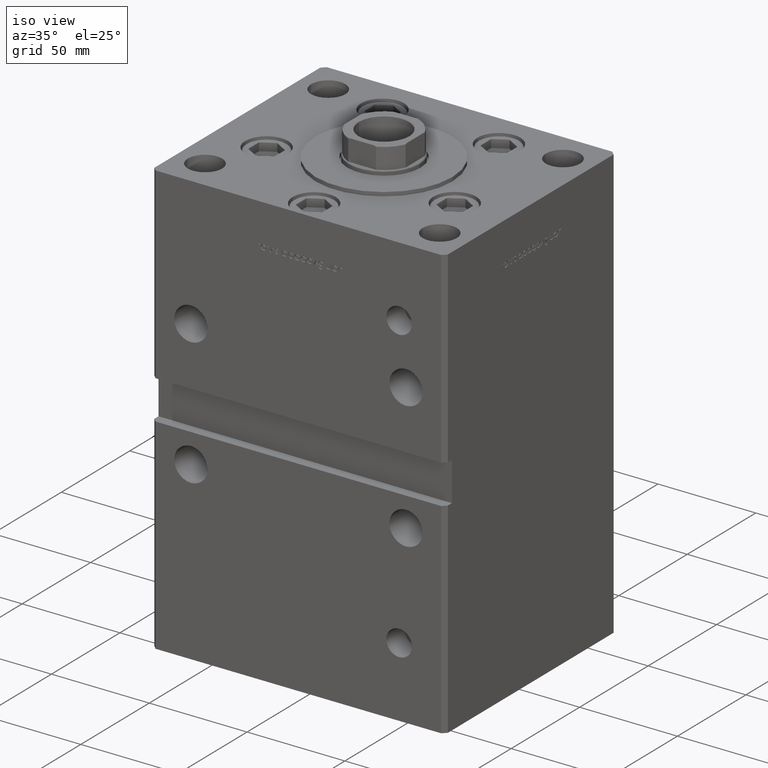
[diagram: clean part render]
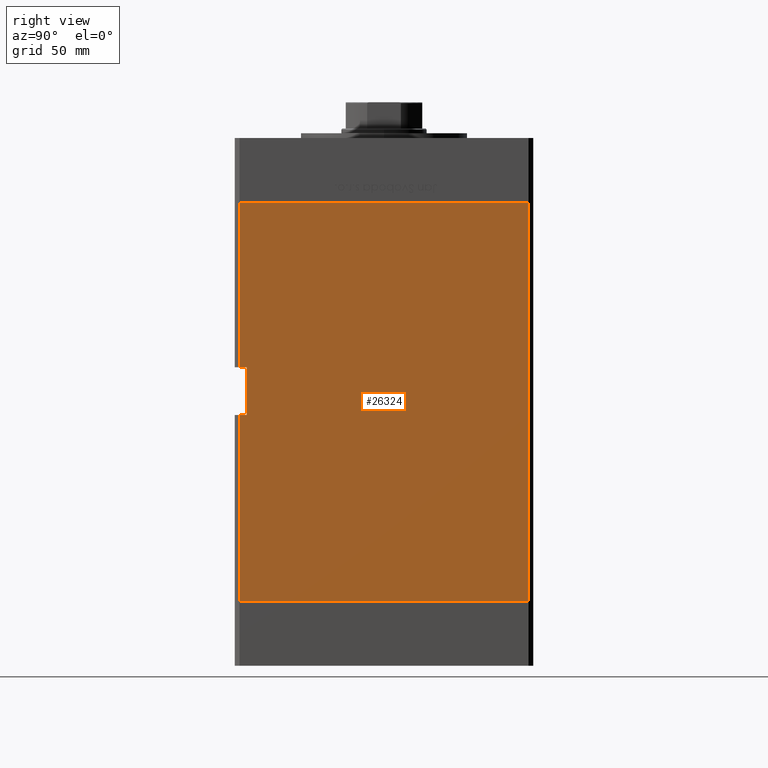
[diagram: tour spotlight — one face highlighted and labeled with its STEP entity id]
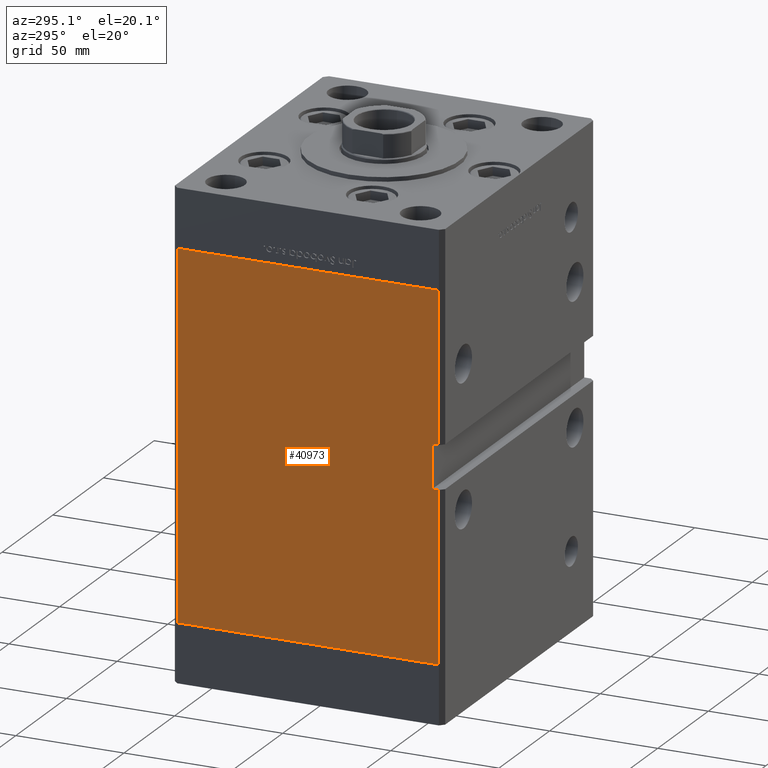
[diagram: tour spotlight — one face highlighted and labeled with its STEP entity id]
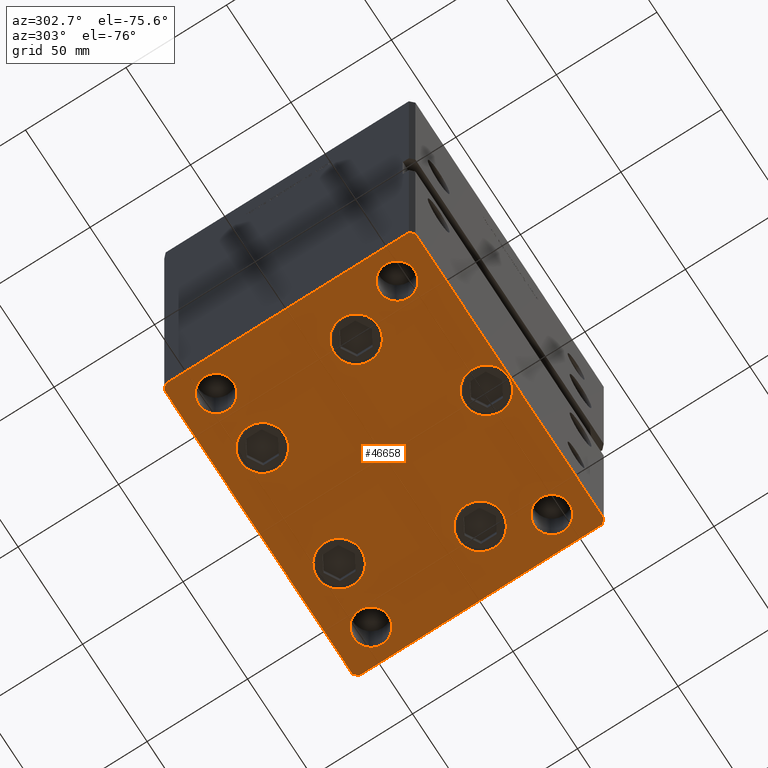
[diagram: tour spotlight — one face highlighted and labeled with its STEP entity id]
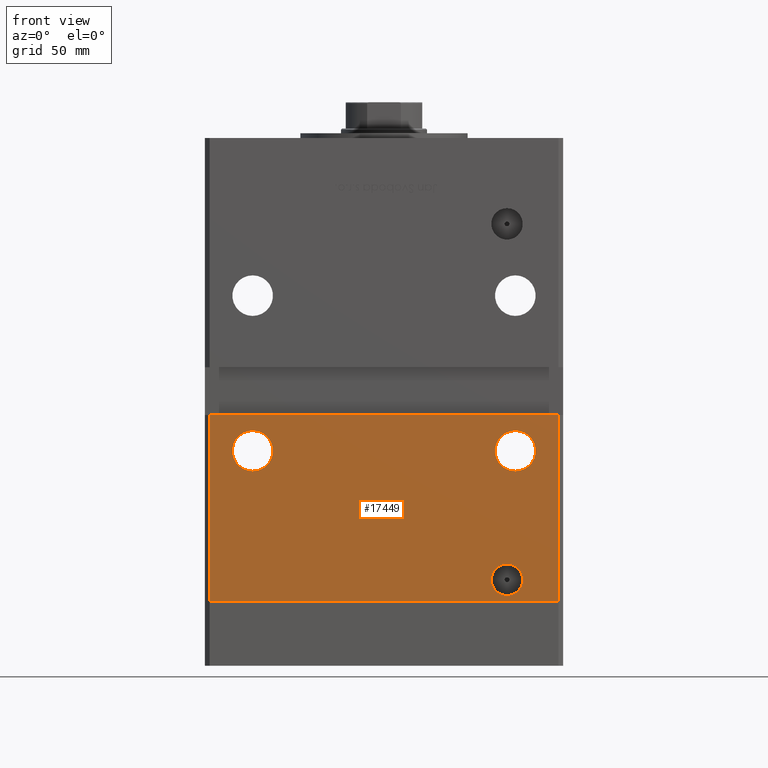
[diagram: tour spotlight — one face highlighted and labeled with its STEP entity id]
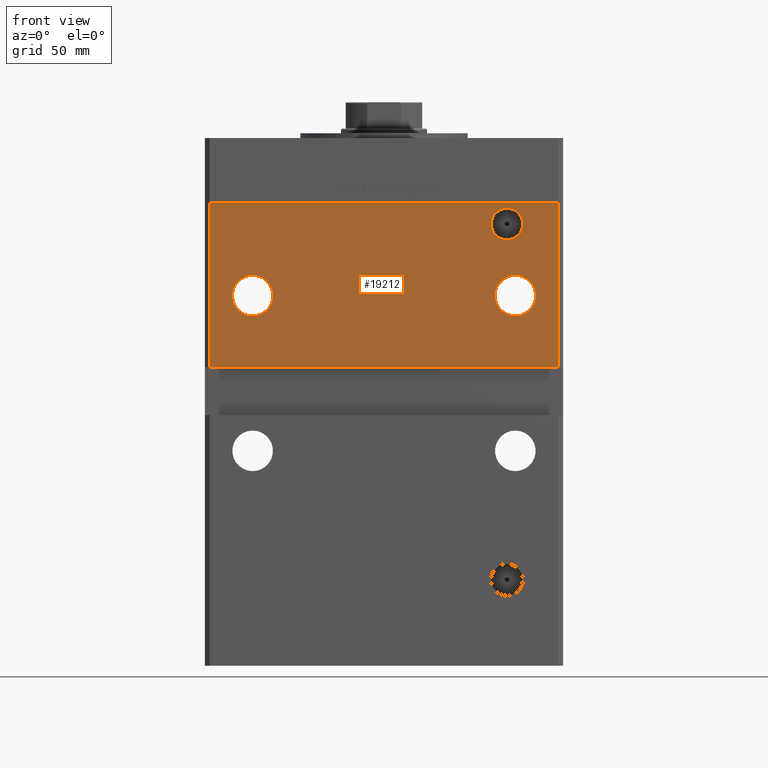
[diagram: tour spotlight — one face highlighted and labeled with its STEP entity id]
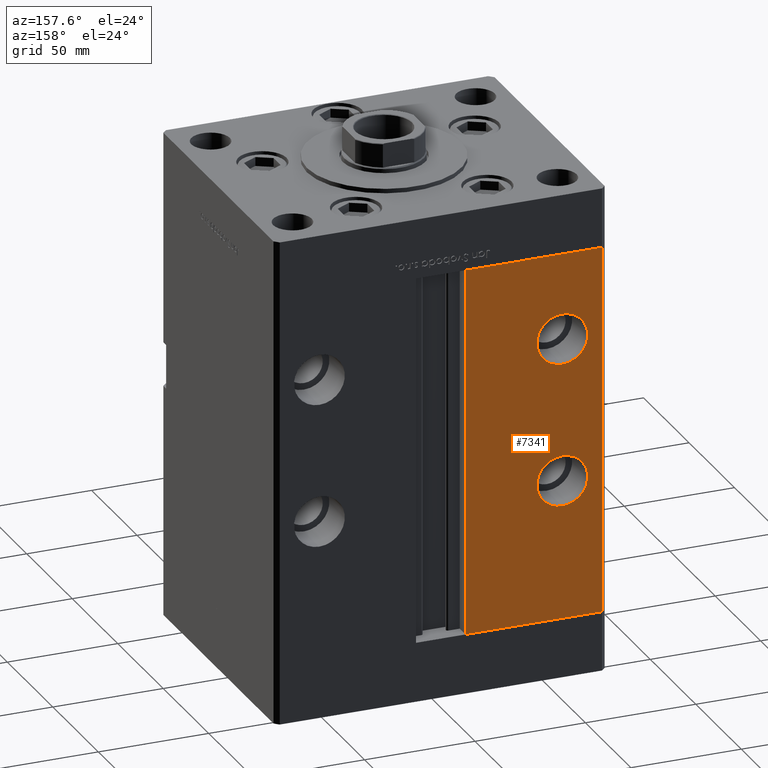
[diagram: tour spotlight — one face highlighted and labeled with its STEP entity id]
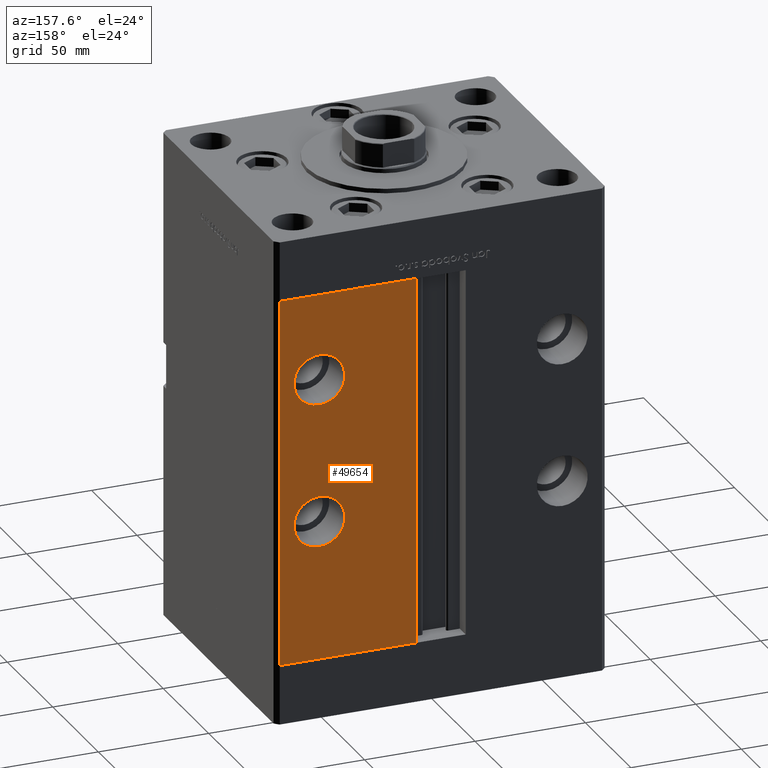
[diagram: tour spotlight — one face highlighted and labeled with its STEP entity id]
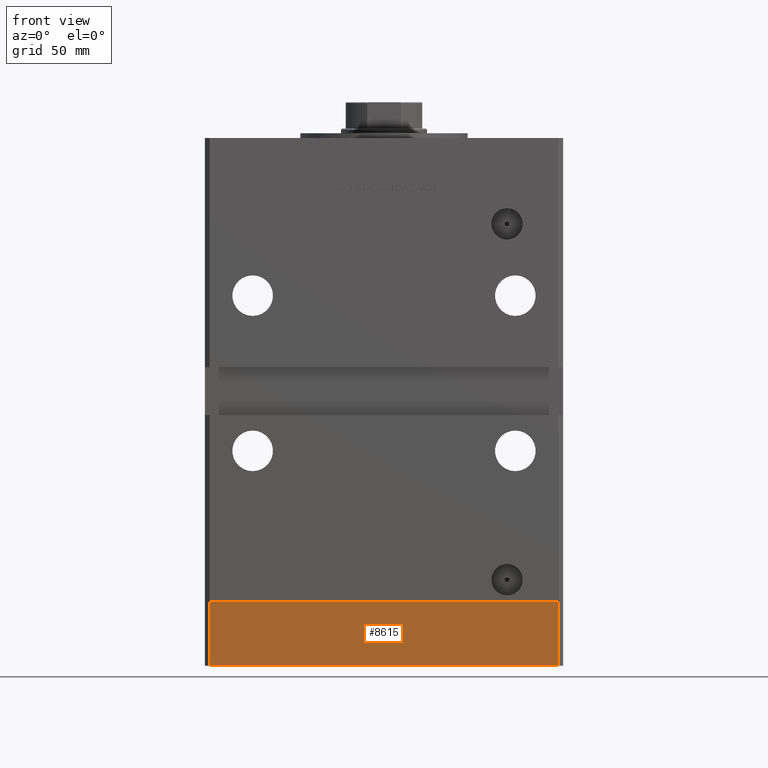
[diagram: tour spotlight — one face highlighted and labeled with its STEP entity id]
A machine part: a face-by-face anatomy tour. The part has 1214 B-rep faces; the first image is the clean iso view, then the 8 largest visible faces are spotlighted one at a time (largest first), each with its STEP entity span.

Face 1 — right view, entity #26324. In plain terms, the highlighted planar face has unit normal (1, -0, 0).
Definition (entity closure, byte-faithful):
#1722 = EDGE_CURVE ( 'NONE', #52333, #22549, #47515, .T. ) ;
#1766 = DIRECTION ( 'NONE',  ( -0.000000000000000000, -0.000000000000000000, -1.000000000000000000 ) ) ;
#3730 = VECTOR ( 'NONE', #1766, 1000.000000000000000 ) ;
#4834 = CARTESIAN_POINT ( 'NONE',  ( 74.99999999999998579, -57.50000000000000000, 98.00000000000000000 ) ) ;
#5575 = LINE ( 'NONE', #39046, #13120 ) ;
#6790 = DIRECTION ( 'NONE',  ( -0.000000000000000000, -0.000000000000000000, -1.000000000000000000 ) ) ;
#7021 = DIRECTION ( 'NONE',  ( -0.000000000000000000, -1.000000000000000000, -0.000000000000000000 ) ) ;
#7870 = CARTESIAN_POINT ( 'NONE',  ( 74.99999999999998579, -60.50000000000000000, 167.0000000000000000 ) ) ;
#8778 = CARTESIAN_POINT ( 'NONE',  ( 74.99999999999998579, -57.49999999999999289, 77.99999999999998579 ) ) ;
#9805 = CARTESIAN_POINT ( 'NONE',  ( 75.00000000000001421, 60.50000000000000000, 167.0000000000000000 ) ) ;
#10017 = VERTEX_POINT ( 'NONE', #50511 ) ;
#10348 = DIRECTION ( 'NONE',  ( 1.000000000000000000, -2.293849224432142354E-16, 0.000000000000000000 ) ) ;
#10443 = AXIS2_PLACEMENT_3D ( 'NONE', #22669, #10348, #43014 ) ;
#11124 = ORIENTED_EDGE ( 'NONE', *, *, #28638, .T. ) ;
#12930 = LINE ( 'NONE', #13441, #21604 ) ;
#13120 = VECTOR ( 'NONE', #43078, 1000.000000000000000 ) ;
#13441 = CARTESIAN_POINT ( 'NONE',  ( 75.00000000000001421, 60.50000000000000000, 0.000000000000000000 ) ) ;
#13623 = EDGE_CURVE ( 'NONE', #13789, #22549, #20157, .T. ) ;
#13789 = VERTEX_POINT ( 'NONE', #4834 ) ;
#13945 = EDGE_LOOP ( 'NONE', ( #46478, #32003, #45419, #31412, #11124, #28644, #45572, #37612 ) ) ;
#13990 = CARTESIAN_POINT ( 'NONE',  ( 74.99999999999998579, -60.50000000000000000, 98.00000000000000000 ) ) ;
#14752 = CARTESIAN_POINT ( 'NONE',  ( 74.99999999999998579, -57.50000000000000000, 98.00000000000000000 ) ) ;
#16517 = VERTEX_POINT ( 'NONE', #52790 ) ;
#18781 = VECTOR ( 'NONE', #7021, 1000.000000000000000 ) ;
#20157 = LINE ( 'NONE', #39965, #18781 ) ;
#21604 = VECTOR ( 'NONE', #41575, 1000.000000000000000 ) ;
#22549 = VERTEX_POINT ( 'NONE', #13990 ) ;
#22669 = CARTESIAN_POINT ( 'NONE',  ( 75.00000000000001421, 60.50000000000000000, 167.0000000000000000 ) ) ;
#22937 = FACE_OUTER_BOUND ( 'NONE', #13945, .T. ) ;
#25956 = VECTOR ( 'NONE', #46636, 1000.000000000000000 ) ;
#26038 = EDGE_CURVE ( 'NONE', #10017, #16517, #5575, .T. ) ;
#26314 = EDGE_CURVE ( 'NONE', #50623, #31042, #38725, .T. ) ;
#26324 = ADVANCED_FACE ( 'NONE', ( #22937 ), #50542, .T. ) ;
#26571 = LINE ( 'NONE', #42901, #34300 ) ;
#27684 = CARTESIAN_POINT ( 'NONE',  ( 74.99999999999998579, -60.50000000000000000, 167.0000000000000000 ) ) ;
#27853 = EDGE_CURVE ( 'NONE', #31042, #16517, #12930, .T. ) ;
#28638 = EDGE_CURVE ( 'NONE', #50623, #52333, #48389, .T. ) ;
#28644 = ORIENTED_EDGE ( 'NONE', *, *, #1722, .T. ) ;
#30364 = EDGE_CURVE ( 'NONE', #33393, #13789, #47179, .T. ) ;
#31042 = VERTEX_POINT ( 'NONE', #45984 ) ;
#31412 = ORIENTED_EDGE ( 'NONE', *, *, #26314, .F. ) ;
#32003 = ORIENTED_EDGE ( 'NONE', *, *, #26038, .T. ) ;
#33393 = VERTEX_POINT ( 'NONE', #8778 ) ;
#34300 = VECTOR ( 'NONE', #38875, 1000.000000000000000 ) ;
#37612 = ORIENTED_EDGE ( 'NONE', *, *, #30364, .F. ) ;
#38725 = LINE ( 'NONE', #9805, #3730 ) ;
#38875 = DIRECTION ( 'NONE',  ( -0.000000000000000000, -1.000000000000000000, -0.000000000000000000 ) ) ;
#39046 = CARTESIAN_POINT ( 'NONE',  ( 74.99999999999998579, -60.50000000000000000, 167.0000000000000000 ) ) ;
#39615 = VECTOR ( 'NONE', #52418, 1000.000000000000000 ) ;
#39965 = CARTESIAN_POINT ( 'NONE',  ( 74.99999999999998579, -57.50000000000000000, 98.00000000000000000 ) ) ;
#41459 = CARTESIAN_POINT ( 'NONE',  ( 75.00000000000001421, 60.50000000000000000, 167.0000000000000000 ) ) ;
#41575 = DIRECTION ( 'NONE',  ( -2.293849224432141861E-16, -1.000000000000000000, 0.000000000000000000 ) ) ;
#42901 = CARTESIAN_POINT ( 'NONE',  ( 74.99999999999998579, -57.50000000000000000, 77.99999999999998579 ) ) ;
#43014 = DIRECTION ( 'NONE',  ( 2.293849224432142354E-16, 1.000000000000000000, 0.000000000000000000 ) ) ;
#43078 = DIRECTION ( 'NONE',  ( -0.000000000000000000, -0.000000000000000000, -1.000000000000000000 ) ) ;
#43835 = CARTESIAN_POINT ( 'NONE',  ( 75.00000000000001421, 60.50000000000000000, 167.0000000000000000 ) ) ;
#45419 = ORIENTED_EDGE ( 'NONE', *, *, #27853, .F. ) ;
#45572 = ORIENTED_EDGE ( 'NONE', *, *, #13623, .F. ) ;
#45984 = CARTESIAN_POINT ( 'NONE',  ( 75.00000000000001421, 60.50000000000000000, 0.000000000000000000 ) ) ;
#46478 = ORIENTED_EDGE ( 'NONE', *, *, #52797, .T. ) ;
#46636 = DIRECTION ( 'NONE',  ( -0.000000000000000000, -0.000000000000000000, 1.000000000000000000 ) ) ;
#47179 = LINE ( 'NONE', #14752, #25956 ) ;
#47515 = LINE ( 'NONE', #27684, #52647 ) ;
#48389 = LINE ( 'NONE', #43835, #39615 ) ;
#50511 = CARTESIAN_POINT ( 'NONE',  ( 74.99999999999998579, -60.50000000000000000, 77.99999999999998579 ) ) ;
#50542 = PLANE ( 'NONE',  #10443 ) ;
#50623 = VERTEX_POINT ( 'NONE', #41459 ) ;
#52333 = VERTEX_POINT ( 'NONE', #7870 ) ;
#52418 = DIRECTION ( 'NONE',  ( -2.293849224432141861E-16, -1.000000000000000000, 0.000000000000000000 ) ) ;
#52647 = VECTOR ( 'NONE', #6790, 1000.000000000000000 ) ;
#52790 = CARTESIAN_POINT ( 'NONE',  ( 74.99999999999998579, -60.50000000000000000, 0.000000000000000000 ) ) ;
#52797 = EDGE_CURVE ( 'NONE', #33393, #10017, #26571, .T. ) ;

Face 2 — auxiliary view, entity #40973. In plain terms, the highlighted planar face has unit normal (1, 0, 0).
Definition (entity closure, byte-faithful):
#151 = VERTEX_POINT ( 'NONE', #13685 ) ;
#1058 = LINE ( 'NONE', #9103, #1936 ) ;
#1936 = VECTOR ( 'NONE', #33738, 1000.000000000000000 ) ;
#2324 = VECTOR ( 'NONE', #52188, 1000.000000000000000 ) ;
#3418 = ORIENTED_EDGE ( 'NONE', *, *, #20799, .T. ) ;
#3472 = CARTESIAN_POINT ( 'NONE',  ( -75.00000000000001421, 60.50000000000000000, 167.0000000000000000 ) ) ;
#3967 = CARTESIAN_POINT ( 'NONE',  ( -74.99999999999998579, -60.50000000000000000, 167.0000000000000000 ) ) ;
#4627 = LINE ( 'NONE', #20723, #48022 ) ;
#4960 = LINE ( 'NONE', #8979, #34131 ) ;
#5309 = EDGE_CURVE ( 'NONE', #151, #22813, #8008, .T. ) ;
#6225 = ORIENTED_EDGE ( 'NONE', *, *, #9641, .T. ) ;
#7644 = EDGE_CURVE ( 'NONE', #23800, #51922, #23505, .T. ) ;
#8008 = LINE ( 'NONE', #23828, #9090 ) ;
#8350 = CARTESIAN_POINT ( 'NONE',  ( -74.99999999999998579, -60.50000000000000000, 77.99999999999998579 ) ) ;
#8979 = CARTESIAN_POINT ( 'NONE',  ( -74.99999999999998579, -60.50000000000000000, 167.0000000000000000 ) ) ;
#9090 = VECTOR ( 'NONE', #48207, 1000.000000000000000 ) ;
#9103 = CARTESIAN_POINT ( 'NONE',  ( -75.00000000000001421, 60.50000000000000000, 0.000000000000000000 ) ) ;
#9360 = VECTOR ( 'NONE', #12016, 1000.000000000000000 ) ;
#9641 = EDGE_CURVE ( 'NONE', #23800, #29156, #23826, .T. ) ;
#11173 = VERTEX_POINT ( 'NONE', #27991 ) ;
#11836 = VECTOR ( 'NONE', #19822, 1000.000000000000000 ) ;
#12016 = DIRECTION ( 'NONE',  ( -0.000000000000000000, -0.000000000000000000, -1.000000000000000000 ) ) ;
#13685 = CARTESIAN_POINT ( 'NONE',  ( -74.99999999999998579, -57.50000000000000000, 77.99999999999998579 ) ) ;
#13847 = EDGE_CURVE ( 'NONE', #22813, #33886, #52476, .T. ) ;
#14934 = CARTESIAN_POINT ( 'NONE',  ( -75.00000000000001421, 60.50000000000000000, 167.0000000000000000 ) ) ;
#18381 = DIRECTION ( 'NONE',  ( -2.293849224432142354E-16, 1.000000000000000000, 0.000000000000000000 ) ) ;
#18487 = EDGE_LOOP ( 'NONE', ( #52149, #41884, #23731, #3418, #41746, #23226, #6225, #35749 ) ) ;
#19822 = DIRECTION ( 'NONE',  ( -0.000000000000000000, -0.000000000000000000, -1.000000000000000000 ) ) ;
#20723 = CARTESIAN_POINT ( 'NONE',  ( -74.99999999999998579, -57.50000000000000000, 98.00000000000000000 ) ) ;
#20799 = EDGE_CURVE ( 'NONE', #45613, #11173, #51289, .T. ) ;
#22813 = VERTEX_POINT ( 'NONE', #8350 ) ;
#23226 = ORIENTED_EDGE ( 'NONE', *, *, #7644, .F. ) ;
#23505 = LINE ( 'NONE', #14934, #2324 ) ;
#23731 = ORIENTED_EDGE ( 'NONE', *, *, #52540, .F. ) ;
#23800 = VERTEX_POINT ( 'NONE', #44203 ) ;
#23826 = LINE ( 'NONE', #3472, #11836 ) ;
#23828 = CARTESIAN_POINT ( 'NONE',  ( -74.99999999999998579, -57.50000000000000000, 77.99999999999998579 ) ) ;
#27991 = CARTESIAN_POINT ( 'NONE',  ( -74.99999999999998579, -60.50000000000000000, 98.00000000000000000 ) ) ;
#28834 = AXIS2_PLACEMENT_3D ( 'NONE', #42755, #50276, #18381 ) ;
#28954 = EDGE_CURVE ( 'NONE', #29156, #33886, #1058, .T. ) ;
#29156 = VERTEX_POINT ( 'NONE', #47136 ) ;
#30155 = PLANE ( 'NONE',  #28834 ) ;
#31171 = CARTESIAN_POINT ( 'NONE',  ( -74.99999999999998579, -57.50000000000000000, 98.00000000000000000 ) ) ;
#33548 = DIRECTION ( 'NONE',  ( 0.000000000000000000, 0.000000000000000000, -1.000000000000000000 ) ) ;
#33738 = DIRECTION ( 'NONE',  ( 2.293849224432141861E-16, -1.000000000000000000, 0.000000000000000000 ) ) ;
#33886 = VERTEX_POINT ( 'NONE', #37254 ) ;
#34131 = VECTOR ( 'NONE', #49193, 1000.000000000000000 ) ;
#35749 = ORIENTED_EDGE ( 'NONE', *, *, #28954, .T. ) ;
#37254 = CARTESIAN_POINT ( 'NONE',  ( -74.99999999999998579, -60.50000000000000000, 0.000000000000000000 ) ) ;
#38615 = VECTOR ( 'NONE', #52089, 1000.000000000000000 ) ;
#40973 = ADVANCED_FACE ( 'NONE', ( #43009 ), #30155, .F. ) ;
#41746 = ORIENTED_EDGE ( 'NONE', *, *, #51003, .F. ) ;
#41884 = ORIENTED_EDGE ( 'NONE', *, *, #5309, .F. ) ;
#42755 = CARTESIAN_POINT ( 'NONE',  ( -75.00000000000001421, 60.50000000000000000, 167.0000000000000000 ) ) ;
#43009 = FACE_OUTER_BOUND ( 'NONE', #18487, .T. ) ;
#44203 = CARTESIAN_POINT ( 'NONE',  ( -75.00000000000001421, 60.50000000000000000, 167.0000000000000000 ) ) ;
#44279 = CARTESIAN_POINT ( 'NONE',  ( -74.99999999999998579, -57.50000000000000000, 98.00000000000000000 ) ) ;
#45613 = VERTEX_POINT ( 'NONE', #44279 ) ;
#47136 = CARTESIAN_POINT ( 'NONE',  ( -75.00000000000001421, 60.50000000000000000, 0.000000000000000000 ) ) ;
#48022 = VECTOR ( 'NONE', #33548, 1000.000000000000000 ) ;
#48207 = DIRECTION ( 'NONE',  ( -0.000000000000000000, -1.000000000000000000, -0.000000000000000000 ) ) ;
#49193 = DIRECTION ( 'NONE',  ( -0.000000000000000000, -0.000000000000000000, -1.000000000000000000 ) ) ;
#49771 = CARTESIAN_POINT ( 'NONE',  ( -74.99999999999998579, -60.50000000000000000, 167.0000000000000000 ) ) ;
#50276 = DIRECTION ( 'NONE',  ( 1.000000000000000000, 2.293849224432142354E-16, -0.000000000000000000 ) ) ;
#51003 = EDGE_CURVE ( 'NONE', #51922, #11173, #4960, .T. ) ;
#51289 = LINE ( 'NONE', #31171, #38615 ) ;
#51922 = VERTEX_POINT ( 'NONE', #49771 ) ;
#52089 = DIRECTION ( 'NONE',  ( -0.000000000000000000, -1.000000000000000000, -0.000000000000000000 ) ) ;
#52149 = ORIENTED_EDGE ( 'NONE', *, *, #13847, .F. ) ;
#52188 = DIRECTION ( 'NONE',  ( 2.293849224432141861E-16, -1.000000000000000000, 0.000000000000000000 ) ) ;
#52476 = LINE ( 'NONE', #3967, #9360 ) ;
#52540 = EDGE_CURVE ( 'NONE', #45613, #151, #4627, .T. ) ;

Face 3 — auxiliary view, entity #46658. In plain terms, the highlighted planar face has unit normal (0, 0, -1).
Definition (entity closure, byte-faithful):
#199 = DIRECTION ( 'NONE',  ( 1.000000000000000000, 0.000000000000000000, 0.000000000000000000 ) ) ;
#221 = VERTEX_POINT ( 'NONE', #32143 ) ;
#329 = VERTEX_POINT ( 'NONE', #30188 ) ;
#686 = EDGE_CURVE ( 'NONE', #20239, #329, #45723, .T. ) ;
#836 = VERTEX_POINT ( 'NONE', #48302 ) ;
#933 = CARTESIAN_POINT ( 'NONE',  ( 60.00000000000000000, 44.99999999999999289, 0.000000000000000000 ) ) ;
#989 = DIRECTION ( 'NONE',  ( 0.000000000000000000, -1.000000000000000000, 0.000000000000000000 ) ) ;
#1059 = VERTEX_POINT ( 'NONE', #34313 ) ;
#1581 = CARTESIAN_POINT ( 'NONE',  ( -73.00000000000001421, 62.49999999999998579, 0.000000000000000000 ) ) ;
#1675 = LINE ( 'NONE', #46410, #28431 ) ;
#1692 = EDGE_CURVE ( 'NONE', #31370, #27637, #42369, .T. ) ;
#1865 = DIRECTION ( 'NONE',  ( 0.000000000000000000, -0.000000000000000000, -1.000000000000000000 ) ) ;
#1984 = CARTESIAN_POINT ( 'NONE',  ( 60.00000000000000000, 44.99999999999999289, 0.000000000000000000 ) ) ;
#2207 = EDGE_LOOP ( 'NONE', ( #23064, #41116 ) ) ;
#2387 = EDGE_CURVE ( 'NONE', #221, #19769, #7306, .T. ) ;
#2396 = FACE_BOUND ( 'NONE', #11918, .T. ) ;
#2431 = AXIS2_PLACEMENT_3D ( 'NONE', #24072, #7187, #52473 ) ;
#2482 = VERTEX_POINT ( 'NONE', #38734 ) ;
#3245 = CARTESIAN_POINT ( 'NONE',  ( 72.99999999999992895, 62.50000000000001421, 0.000000000000000000 ) ) ;
#3343 = ORIENTED_EDGE ( 'NONE', *, *, #29579, .F. ) ;
#3364 = EDGE_LOOP ( 'NONE', ( #30341, #3343 ) ) ;
#3457 = CARTESIAN_POINT ( 'NONE',  ( -37.08326112068521496, -17.00000000000000711, 0.000000000000000000 ) ) ;
#3498 = DIRECTION ( 'NONE',  ( 0.000000000000000000, -0.000000000000000000, -1.000000000000000000 ) ) ;
#4037 = CARTESIAN_POINT ( 'NONE',  ( 40.73102073172059079, 41.43749999999999289, 0.000000000000000000 ) ) ;
#4253 = CARTESIAN_POINT ( 'NONE',  ( 68.75000000000000000, 44.99999999999999289, 0.000000000000000000 ) ) ;
#4646 = EDGE_LOOP ( 'NONE', ( #7937, #38660 ) ) ;
#5758 = LINE ( 'NONE', #6550, #38379 ) ;
#5964 = CARTESIAN_POINT ( 'NONE',  ( -59.99999999999999289, -45.00000000000000000, 0.000000000000000000 ) ) ;
#6147 = CARTESIAN_POINT ( 'NONE',  ( -48.08326112068522207, -17.00000000000000711, 0.000000000000000000 ) ) ;
#6550 = CARTESIAN_POINT ( 'NONE',  ( -73.00000000000001421, 62.49999999999998579, 0.000000000000000000 ) ) ;
#6942 = CARTESIAN_POINT ( 'NONE',  ( 73.00000000000001421, -62.50000000000001421, 0.000000000000000000 ) ) ;
#6953 = FACE_BOUND ( 'NONE', #45900, .T. ) ;
#7098 = DIRECTION ( 'NONE',  ( 0.000000000000000000, -0.000000000000000000, -1.000000000000000000 ) ) ;
#7187 = DIRECTION ( 'NONE',  ( 0.000000000000000000, -0.000000000000000000, -1.000000000000000000 ) ) ;
#7306 = CIRCLE ( 'NONE', #37240, 8.750000000000000000 ) ;
#7511 = ORIENTED_EDGE ( 'NONE', *, *, #47953, .T. ) ;
#7600 = DIRECTION ( 'NONE',  ( 0.000000000000000000, -0.000000000000000000, -1.000000000000000000 ) ) ;
#7937 = ORIENTED_EDGE ( 'NONE', *, *, #2387, .F. ) ;
#8055 = LINE ( 'NONE', #3245, #11719 ) ;
#8142 = ORIENTED_EDGE ( 'NONE', *, *, #29962, .T. ) ;
#8400 = DIRECTION ( 'NONE',  ( 1.000000000000000000, 9.505334114941407284E-17, 0.000000000000000000 ) ) ;
#8480 = AXIS2_PLACEMENT_3D ( 'NONE', #1984, #37892, #21826 ) ;
#8667 = ORIENTED_EDGE ( 'NONE', *, *, #34491, .T. ) ;
#9034 = CARTESIAN_POINT ( 'NONE',  ( 75.00000000000001421, -60.50000000000000711, 0.000000000000000000 ) ) ;
#10031 = CARTESIAN_POINT ( 'NONE',  ( -60.00000000000000000, 45.00000000000000000, 0.000000000000000000 ) ) ;
#10428 = DIRECTION ( 'NONE',  ( 1.000000000000000000, 0.000000000000000000, 0.000000000000000000 ) ) ;
#10670 = CIRCLE ( 'NONE', #50027, 11.00000000000000355 ) ;
#10706 = FACE_BOUND ( 'NONE', #2207, .T. ) ;
#10904 = CIRCLE ( 'NONE', #23639, 10.99999999999999645 ) ;
#10977 = PLANE ( 'NONE',  #22022 ) ;
#10995 = CARTESIAN_POINT ( 'NONE',  ( 59.08326112068522207, -16.99999999999999645, 0.000000000000000000 ) ) ;
#11236 = DIRECTION ( 'NONE',  ( 1.000000000000000000, 0.000000000000000000, 0.000000000000000000 ) ) ;
#11332 = EDGE_CURVE ( 'NONE', #2482, #51997, #49490, .T. ) ;
#11505 = FACE_BOUND ( 'NONE', #3364, .T. ) ;
#11658 = CARTESIAN_POINT ( 'NONE',  ( 74.99999999999992895, 60.50000000000002842, 0.000000000000000000 ) ) ;
#11719 = VECTOR ( 'NONE', #49038, 1000.000000000000000 ) ;
#11909 = AXIS2_PLACEMENT_3D ( 'NONE', #39346, #23024, #10428 ) ;
#11918 = EDGE_LOOP ( 'NONE', ( #26593, #7511 ) ) ;
#12064 = EDGE_CURVE ( 'NONE', #43561, #23982, #23031, .T. ) ;
#12687 = LINE ( 'NONE', #28756, #41336 ) ;
#12786 = EDGE_LOOP ( 'NONE', ( #45321, #48228 ) ) ;
#13235 = DIRECTION ( 'NONE',  ( 0.000000000000000000, -0.000000000000000000, -1.000000000000000000 ) ) ;
#13255 = CARTESIAN_POINT ( 'NONE',  ( 37.08326112068521496, -16.99999999999999645, 0.000000000000000000 ) ) ;
#13311 = EDGE_CURVE ( 'NONE', #42942, #15182, #5758, .T. ) ;
#14090 = AXIS2_PLACEMENT_3D ( 'NONE', #39031, #31541, #35285 ) ;
#14091 = AXIS2_PLACEMENT_3D ( 'NONE', #18915, #51597, #47569 ) ;
#14093 = EDGE_CURVE ( 'NONE', #33320, #36011, #42706, .T. ) ;
#15090 = DIRECTION ( 'NONE',  ( 1.000000000000000000, 0.000000000000000000, 0.000000000000000000 ) ) ;
#15182 = VERTEX_POINT ( 'NONE', #28437 ) ;
#15325 = EDGE_CURVE ( 'NONE', #18348, #24618, #21378, .T. ) ;
#15524 = DIRECTION ( 'NONE',  ( -0.000000000000000000, 0.000000000000000000, 1.000000000000000000 ) ) ;
#15548 = DIRECTION ( 'NONE',  ( 1.000000000000000000, 0.000000000000000000, 0.000000000000000000 ) ) ;
#16139 = VECTOR ( 'NONE', #50626, 1000.000000000000000 ) ;
#16497 = DIRECTION ( 'NONE',  ( 1.000000000000000000, 0.000000000000000000, 0.000000000000000000 ) ) ;
#16542 = EDGE_CURVE ( 'NONE', #27637, #31370, #23867, .T. ) ;
#16586 = ORIENTED_EDGE ( 'NONE', *, *, #686, .T. ) ;
#16734 = ORIENTED_EDGE ( 'NONE', *, *, #39692, .T. ) ;
#18348 = VERTEX_POINT ( 'NONE', #3457 ) ;
#18471 = CARTESIAN_POINT ( 'NONE',  ( -59.99999999999999289, -45.00000000000000000, 0.000000000000000000 ) ) ;
#18872 = CARTESIAN_POINT ( 'NONE',  ( 29.73102073172059789, 41.43749999999999289, 0.000000000000000000 ) ) ;
#18915 = CARTESIAN_POINT ( 'NONE',  ( 60.00000000000000000, -44.99999999999999289, 0.000000000000000000 ) ) ;
#19017 = FACE_BOUND ( 'NONE', #26475, .T. ) ;
#19021 = ORIENTED_EDGE ( 'NONE', *, *, #12064, .T. ) ;
#19314 = ORIENTED_EDGE ( 'NONE', *, *, #15325, .T. ) ;
#19718 = CARTESIAN_POINT ( 'NONE',  ( -75.00000000000001421, -60.50000000000001421, 0.000000000000000000 ) ) ;
#19769 = VERTEX_POINT ( 'NONE', #24252 ) ;
#19902 = ORIENTED_EDGE ( 'NONE', *, *, #22650, .T. ) ;
#20239 = VERTEX_POINT ( 'NONE', #26025 ) ;
#20247 = VERTEX_POINT ( 'NONE', #38079 ) ;
#21190 = DIRECTION ( 'NONE',  ( 0.000000000000000000, -0.000000000000000000, -1.000000000000000000 ) ) ;
#21191 = CIRCLE ( 'NONE', #28038, 10.99999999999999645 ) ;
#21200 = CARTESIAN_POINT ( 'NONE',  ( 74.99999999999992895, 60.50000000000002842, 0.000000000000000000 ) ) ;
#21368 = LINE ( 'NONE', #37694, #38376 ) ;
#21378 = CIRCLE ( 'NONE', #40193, 11.00000000000000355 ) ;
#21394 = EDGE_CURVE ( 'NONE', #51997, #2482, #21541, .T. ) ;
#21541 = CIRCLE ( 'NONE', #25817, 8.750000000000000000 ) ;
#21718 = EDGE_CURVE ( 'NONE', #1059, #24686, #45732, .T. ) ;
#21763 = VECTOR ( 'NONE', #40498, 1000.000000000000114 ) ;
#21826 = DIRECTION ( 'NONE',  ( 1.000000000000000000, 0.000000000000000000, 0.000000000000000000 ) ) ;
#22022 = AXIS2_PLACEMENT_3D ( 'NONE', #27048, #15524, #31326 ) ;
#22308 = CIRCLE ( 'NONE', #52279, 8.750000000000000000 ) ;
#22650 = EDGE_CURVE ( 'NONE', #24399, #28841, #1675, .T. ) ;
#23024 = DIRECTION ( 'NONE',  ( 0.000000000000000000, -0.000000000000000000, -1.000000000000000000 ) ) ;
#23031 = CIRCLE ( 'NONE', #11909, 11.00000000000000355 ) ;
#23038 = FACE_BOUND ( 'NONE', #47570, .T. ) ;
#23064 = ORIENTED_EDGE ( 'NONE', *, *, #21394, .T. ) ;
#23560 = FACE_BOUND ( 'NONE', #12786, .T. ) ;
#23639 = AXIS2_PLACEMENT_3D ( 'NONE', #18872, #7600, #47792 ) ;
#23867 = CIRCLE ( 'NONE', #38493, 11.00000000000000000 ) ;
#23982 = VERTEX_POINT ( 'NONE', #10995 ) ;
#24072 = CARTESIAN_POINT ( 'NONE',  ( 60.00000000000000000, -44.99999999999999289, 0.000000000000000000 ) ) ;
#24206 = ORIENTED_EDGE ( 'NONE', *, *, #33243, .T. ) ;
#24252 = CARTESIAN_POINT ( 'NONE',  ( -68.75000000000000000, 45.00000000000000000, 0.000000000000000000 ) ) ;
#24367 = CIRCLE ( 'NONE', #14090, 11.00000000000000000 ) ;
#24399 = VERTEX_POINT ( 'NONE', #19718 ) ;
#24618 = VERTEX_POINT ( 'NONE', #32185 ) ;
#24686 = VERTEX_POINT ( 'NONE', #11658 ) ;
#25270 = AXIS2_PLACEMENT_3D ( 'NONE', #34916, #13235, #15090 ) ;
#25817 = AXIS2_PLACEMENT_3D ( 'NONE', #18471, #34798, #11236 ) ;
#26025 = CARTESIAN_POINT ( 'NONE',  ( 51.24999999999999289, -44.99999999999999289, 0.000000000000000000 ) ) ;
#26369 = DIRECTION ( 'NONE',  ( -0.000000000000000000, 0.000000000000000000, 1.000000000000000000 ) ) ;
#26475 = EDGE_LOOP ( 'NONE', ( #48566, #50384 ) ) ;
#26593 = ORIENTED_EDGE ( 'NONE', *, *, #34238, .T. ) ;
#26665 = VECTOR ( 'NONE', #46260, 1000.000000000000000 ) ;
#27048 = CARTESIAN_POINT ( 'NONE',  ( 0.000000000000000000, 0.000000000000000000, 0.000000000000000000 ) ) ;
#27381 = CARTESIAN_POINT ( 'NONE',  ( 18.73102073172060500, 41.43749999999999289, 0.000000000000000000 ) ) ;
#27387 = CARTESIAN_POINT ( 'NONE',  ( 11.00000000000000711, -51.00000000000000000, 0.000000000000000000 ) ) ;
#27579 = FACE_OUTER_BOUND ( 'NONE', #47605, .T. ) ;
#27636 = CARTESIAN_POINT ( 'NONE',  ( -73.00000000000001421, -62.50000000000002842, 0.000000000000000000 ) ) ;
#27637 = VERTEX_POINT ( 'NONE', #42953 ) ;
#27771 = CIRCLE ( 'NONE', #44861, 11.00000000000000355 ) ;
#27842 = FACE_BOUND ( 'NONE', #4646, .T. ) ;
#28038 = AXIS2_PLACEMENT_3D ( 'NONE', #40753, #21190, #33236 ) ;
#28431 = VECTOR ( 'NONE', #34884, 1000.000000000000114 ) ;
#28437 = CARTESIAN_POINT ( 'NONE',  ( -75.00000000000001421, 60.49999999999997158, 0.000000000000000000 ) ) ;
#28438 = LINE ( 'NONE', #21200, #21763 ) ;
#28756 = CARTESIAN_POINT ( 'NONE',  ( -73.00000000000001421, -62.50000000000002842, 0.000000000000000000 ) ) ;
#28824 = VERTEX_POINT ( 'NONE', #27381 ) ;
#28841 = VERTEX_POINT ( 'NONE', #27636 ) ;
#29579 = EDGE_CURVE ( 'NONE', #36011, #33320, #31055, .T. ) ;
#29962 = EDGE_CURVE ( 'NONE', #28841, #20247, #12687, .T. ) ;
#30188 = CARTESIAN_POINT ( 'NONE',  ( 68.75000000000000000, -44.99999999999999289, 0.000000000000000000 ) ) ;
#30341 = ORIENTED_EDGE ( 'NONE', *, *, #14093, .F. ) ;
#30620 = CIRCLE ( 'NONE', #31469, 11.00000000000000000 ) ;
#31055 = CIRCLE ( 'NONE', #43915, 8.750000000000007105 ) ;
#31326 = DIRECTION ( 'NONE',  ( 1.000000000000000000, 0.000000000000000000, 0.000000000000000000 ) ) ;
#31370 = VERTEX_POINT ( 'NONE', #35652 ) ;
#31469 = AXIS2_PLACEMENT_3D ( 'NONE', #44067, #7098, #47294 ) ;
#31541 = DIRECTION ( 'NONE',  ( 0.000000000000000000, -0.000000000000000000, -1.000000000000000000 ) ) ;
#31733 = DIRECTION ( 'NONE',  ( -0.7071067811865451302, -0.7071067811865500152, 0.000000000000000000 ) ) ;
#32143 = CARTESIAN_POINT ( 'NONE',  ( -51.25000000000000000, 45.00000000000000000, 0.000000000000000000 ) ) ;
#32185 = CARTESIAN_POINT ( 'NONE',  ( -59.08326112068522207, -17.00000000000000711, 0.000000000000000000 ) ) ;
#32466 = VERTEX_POINT ( 'NONE', #41718 ) ;
#32756 = ORIENTED_EDGE ( 'NONE', *, *, #21718, .T. ) ;
#33236 = DIRECTION ( 'NONE',  ( 1.000000000000000000, 0.000000000000000000, 0.000000000000000000 ) ) ;
#33243 = EDGE_CURVE ( 'NONE', #24618, #18348, #27771, .T. ) ;
#33320 = VERTEX_POINT ( 'NONE', #4253 ) ;
#33826 = EDGE_CURVE ( 'NONE', #24686, #836, #28438, .T. ) ;
#34204 = CARTESIAN_POINT ( 'NONE',  ( -51.24999999999999289, -45.00000000000000000, 0.000000000000000000 ) ) ;
#34238 = EDGE_CURVE ( 'NONE', #32466, #46494, #24367, .T. ) ;
#34313 = CARTESIAN_POINT ( 'NONE',  ( 75.00000000000001421, -60.50000000000000711, 0.000000000000000000 ) ) ;
#34491 = EDGE_CURVE ( 'NONE', #23982, #43561, #10670, .T. ) ;
#34798 = DIRECTION ( 'NONE',  ( 0.000000000000000000, -0.000000000000000000, -1.000000000000000000 ) ) ;
#34884 = DIRECTION ( 'NONE',  ( 0.7071067811865451302, -0.7071067811865500152, 0.000000000000000000 ) ) ;
#34887 = DIRECTION ( 'NONE',  ( 0.000000000000000000, -0.000000000000000000, -1.000000000000000000 ) ) ;
#34916 = CARTESIAN_POINT ( 'NONE',  ( -29.73102073172060500, 41.43749999999998579, 0.000000000000000000 ) ) ;
#35067 = LINE ( 'NONE', #6942, #16139 ) ;
#35285 = DIRECTION ( 'NONE',  ( 1.000000000000000000, 0.000000000000000000, 0.000000000000000000 ) ) ;
#35652 = CARTESIAN_POINT ( 'NONE',  ( -18.73102073172060500, 41.43749999999998579, 0.000000000000000000 ) ) ;
#36011 = VERTEX_POINT ( 'NONE', #51800 ) ;
#36817 = ORIENTED_EDGE ( 'NONE', *, *, #49750, .T. ) ;
#36902 = DIRECTION ( 'NONE',  ( -0.000000000000000000, 0.000000000000000000, 1.000000000000000000 ) ) ;
#37240 = AXIS2_PLACEMENT_3D ( 'NONE', #44435, #36902, #199 ) ;
#37500 = CIRCLE ( 'NONE', #2431, 8.750000000000007105 ) ;
#37694 = CARTESIAN_POINT ( 'NONE',  ( -75.00000000000001421, 60.49999999999997158, 0.000000000000000000 ) ) ;
#37830 = ORIENTED_EDGE ( 'NONE', *, *, #33826, .T. ) ;
#37892 = DIRECTION ( 'NONE',  ( -0.000000000000000000, 0.000000000000000000, 1.000000000000000000 ) ) ;
#38079 = CARTESIAN_POINT ( 'NONE',  ( 73.00000000000001421, -62.50000000000001421, 0.000000000000000000 ) ) ;
#38376 = VECTOR ( 'NONE', #989, 1000.000000000000000 ) ;
#38379 = VECTOR ( 'NONE', #31733, 1000.000000000000114 ) ;
#38493 = AXIS2_PLACEMENT_3D ( 'NONE', #40707, #3498, #15548 ) ;
#38660 = ORIENTED_EDGE ( 'NONE', *, *, #52260, .F. ) ;
#38734 = CARTESIAN_POINT ( 'NONE',  ( -68.74999999999998579, -45.00000000000000000, 0.000000000000000000 ) ) ;
#38947 = ORIENTED_EDGE ( 'NONE', *, *, #50041, .T. ) ;
#38964 = DIRECTION ( 'NONE',  ( 1.000000000000000000, 0.000000000000000000, 0.000000000000000000 ) ) ;
#39031 = CARTESIAN_POINT ( 'NONE',  ( 6.245698675651500444E-15, -51.00000000000000000, 0.000000000000000000 ) ) ;
#39346 = CARTESIAN_POINT ( 'NONE',  ( 48.08326112068522207, -16.99999999999999645, 0.000000000000000000 ) ) ;
#39692 = EDGE_CURVE ( 'NONE', #836, #42942, #8055, .T. ) ;
#39726 = VERTEX_POINT ( 'NONE', #4037 ) ;
#39885 = DIRECTION ( 'NONE',  ( 1.000000000000000000, 0.000000000000000000, 0.000000000000000000 ) ) ;
#40168 = FACE_BOUND ( 'NONE', #40913, .T. ) ;
#40193 = AXIS2_PLACEMENT_3D ( 'NONE', #50120, #1865, #50383 ) ;
#40498 = DIRECTION ( 'NONE',  ( -0.7071067811865500152, 0.7071067811865451302, 0.000000000000000000 ) ) ;
#40707 = CARTESIAN_POINT ( 'NONE',  ( -29.73102073172060500, 41.43749999999998579, 0.000000000000000000 ) ) ;
#40753 = CARTESIAN_POINT ( 'NONE',  ( 29.73102073172059789, 41.43749999999999289, 0.000000000000000000 ) ) ;
#40873 = DIRECTION ( 'NONE',  ( -0.000000000000000000, 0.000000000000000000, 1.000000000000000000 ) ) ;
#40913 = EDGE_LOOP ( 'NONE', ( #19021, #8667 ) ) ;
#41038 = ORIENTED_EDGE ( 'NONE', *, *, #48913, .T. ) ;
#41116 = ORIENTED_EDGE ( 'NONE', *, *, #11332, .T. ) ;
#41336 = VECTOR ( 'NONE', #8400, 1000.000000000000000 ) ;
#41718 = CARTESIAN_POINT ( 'NONE',  ( -10.99999999999999289, -51.00000000000000000, 0.000000000000000000 ) ) ;
#42369 = CIRCLE ( 'NONE', #25270, 11.00000000000000000 ) ;
#42399 = EDGE_CURVE ( 'NONE', #39726, #28824, #10904, .T. ) ;
#42706 = CIRCLE ( 'NONE', #8480, 8.750000000000007105 ) ;
#42710 = DIRECTION ( 'NONE',  ( 1.000000000000000000, 0.000000000000000000, 0.000000000000000000 ) ) ;
#42919 = DIRECTION ( 'NONE',  ( 1.000000000000000000, 0.000000000000000000, 0.000000000000000000 ) ) ;
#42942 = VERTEX_POINT ( 'NONE', #1581 ) ;
#42953 = CARTESIAN_POINT ( 'NONE',  ( -40.73102073172060500, 41.43749999999998579, 0.000000000000000000 ) ) ;
#43524 = AXIS2_PLACEMENT_3D ( 'NONE', #5964, #34887, #42919 ) ;
#43561 = VERTEX_POINT ( 'NONE', #13255 ) ;
#43915 = AXIS2_PLACEMENT_3D ( 'NONE', #933, #40873, #16497 ) ;
#44067 = CARTESIAN_POINT ( 'NONE',  ( 6.245698675651500444E-15, -51.00000000000000000, 0.000000000000000000 ) ) ;
#44435 = CARTESIAN_POINT ( 'NONE',  ( -60.00000000000000000, 45.00000000000000000, 0.000000000000000000 ) ) ;
#44861 = AXIS2_PLACEMENT_3D ( 'NONE', #6147, #47952, #39885 ) ;
#45321 = ORIENTED_EDGE ( 'NONE', *, *, #46517, .T. ) ;
#45723 = CIRCLE ( 'NONE', #14091, 8.750000000000007105 ) ;
#45732 = LINE ( 'NONE', #9034, #26665 ) ;
#45900 = EDGE_LOOP ( 'NONE', ( #41038, #16586 ) ) ;
#46260 = DIRECTION ( 'NONE',  ( -6.881547673296424104E-16, 1.000000000000000000, 0.000000000000000000 ) ) ;
#46410 = CARTESIAN_POINT ( 'NONE',  ( -75.00000000000001421, -60.50000000000001421, 0.000000000000000000 ) ) ;
#46494 = VERTEX_POINT ( 'NONE', #27387 ) ;
#46517 = EDGE_CURVE ( 'NONE', #28824, #39726, #21191, .T. ) ;
#46658 = ADVANCED_FACE ( 'NONE', ( #19017, #23560, #40168, #2396, #23038, #11505, #6953, #27842, #27579, #10706 ), #10977, .T. ) ;
#47294 = DIRECTION ( 'NONE',  ( 1.000000000000000000, 0.000000000000000000, 0.000000000000000000 ) ) ;
#47569 = DIRECTION ( 'NONE',  ( 1.000000000000000000, 0.000000000000000000, 0.000000000000000000 ) ) ;
#47570 = EDGE_LOOP ( 'NONE', ( #24206, #19314 ) ) ;
#47605 = EDGE_LOOP ( 'NONE', ( #19902, #8142, #36817, #32756, #37830, #16734, #49879, #38947 ) ) ;
#47792 = DIRECTION ( 'NONE',  ( 1.000000000000000000, 0.000000000000000000, 0.000000000000000000 ) ) ;
#47829 = CARTESIAN_POINT ( 'NONE',  ( 48.08326112068522207, -16.99999999999999645, 0.000000000000000000 ) ) ;
#47953 = EDGE_CURVE ( 'NONE', #46494, #32466, #30620, .T. ) ;
#47952 = DIRECTION ( 'NONE',  ( 0.000000000000000000, -0.000000000000000000, -1.000000000000000000 ) ) ;
#48228 = ORIENTED_EDGE ( 'NONE', *, *, #42399, .T. ) ;
#48302 = CARTESIAN_POINT ( 'NONE',  ( 72.99999999999992895, 62.50000000000001421, 0.000000000000000000 ) ) ;
#48566 = ORIENTED_EDGE ( 'NONE', *, *, #16542, .T. ) ;
#48913 = EDGE_CURVE ( 'NONE', #329, #20239, #37500, .T. ) ;
#49038 = DIRECTION ( 'NONE',  ( -1.000000000000000000, -1.901066822988282689E-16, 0.000000000000000000 ) ) ;
#49490 = CIRCLE ( 'NONE', #43524, 8.750000000000000000 ) ;
#49750 = EDGE_CURVE ( 'NONE', #20247, #1059, #35067, .T. ) ;
#49879 = ORIENTED_EDGE ( 'NONE', *, *, #13311, .T. ) ;
#50027 = AXIS2_PLACEMENT_3D ( 'NONE', #47829, #51585, #38964 ) ;
#50041 = EDGE_CURVE ( 'NONE', #15182, #24399, #21368, .T. ) ;
#50120 = CARTESIAN_POINT ( 'NONE',  ( -48.08326112068522207, -17.00000000000000711, 0.000000000000000000 ) ) ;
#50383 = DIRECTION ( 'NONE',  ( 1.000000000000000000, 0.000000000000000000, 0.000000000000000000 ) ) ;
#50384 = ORIENTED_EDGE ( 'NONE', *, *, #1692, .T. ) ;
#50626 = DIRECTION ( 'NONE',  ( 0.7071067811865463515, 0.7071067811865487940, 0.000000000000000000 ) ) ;
#51585 = DIRECTION ( 'NONE',  ( 0.000000000000000000, -0.000000000000000000, -1.000000000000000000 ) ) ;
#51597 = DIRECTION ( 'NONE',  ( 0.000000000000000000, -0.000000000000000000, -1.000000000000000000 ) ) ;
#51800 = CARTESIAN_POINT ( 'NONE',  ( 51.24999999999999289, 44.99999999999999289, 0.000000000000000000 ) ) ;
#51997 = VERTEX_POINT ( 'NONE', #34204 ) ;
#52260 = EDGE_CURVE ( 'NONE', #19769, #221, #22308, .T. ) ;
#52279 = AXIS2_PLACEMENT_3D ( 'NONE', #10031, #26369, #42710 ) ;
#52473 = DIRECTION ( 'NONE',  ( 1.000000000000000000, 0.000000000000000000, 0.000000000000000000 ) ) ;

Face 4 — front view, entity #17449. In plain terms, the highlighted planar face has unit normal (0, 1, 0).
Definition (entity closure, byte-faithful):
#585 = DIRECTION ( 'NONE',  ( 0.000000000000000000, 0.000000000000000000, 1.000000000000000000 ) ) ;
#1226 = VERTEX_POINT ( 'NONE', #36701 ) ;
#1293 = DIRECTION ( 'NONE',  ( 0.000000000000000000, 1.000000000000000000, 0.000000000000000000 ) ) ;
#1593 = AXIS2_PLACEMENT_3D ( 'NONE', #45424, #29607, #25068 ) ;
#1968 = CARTESIAN_POINT ( 'NONE',  ( -72.99999999999998579, -62.50000000000000000, 77.99999999999998579 ) ) ;
#2054 = VERTEX_POINT ( 'NONE', #31900 ) ;
#2778 = DIRECTION ( 'NONE',  ( 1.000000000000000000, 0.000000000000000000, 0.000000000000000000 ) ) ;
#3215 = CIRCLE ( 'NONE', #32275, 6.579999999999994742 ) ;
#3593 = CARTESIAN_POINT ( 'NONE',  ( -72.99999999999998579, -62.50000000000000000, 167.0000000000000000 ) ) ;
#3789 = EDGE_CURVE ( 'NONE', #2054, #8062, #30045, .T. ) ;
#4022 = ORIENTED_EDGE ( 'NONE', *, *, #45627, .F. ) ;
#4137 = DIRECTION ( 'NONE',  ( 0.000000000000000000, -1.000000000000000000, 0.000000000000000000 ) ) ;
#4396 = CARTESIAN_POINT ( 'NONE',  ( 72.99999999999998579, -62.50000000000000000, 0.000000000000000000 ) ) ;
#5047 = EDGE_CURVE ( 'NONE', #26537, #15604, #20666, .T. ) ;
#5083 = CARTESIAN_POINT ( 'NONE',  ( -55.00000000000000000, -62.50000000000000000, 71.50000000000001421 ) ) ;
#5316 = FACE_BOUND ( 'NONE', #52915, .T. ) ;
#5516 = ORIENTED_EDGE ( 'NONE', *, *, #15899, .T. ) ;
#8062 = VERTEX_POINT ( 'NONE', #4396 ) ;
#8413 = AXIS2_PLACEMENT_3D ( 'NONE', #12430, #4137, #20488 ) ;
#8523 = CIRCLE ( 'NONE', #25652, 8.500000000000007105 ) ;
#9349 = DIRECTION ( 'NONE',  ( 0.000000000000000000, -0.000000000000000000, 1.000000000000000000 ) ) ;
#9663 = VERTEX_POINT ( 'NONE', #20859 ) ;
#9958 = DIRECTION ( 'NONE',  ( -0.000000000000000000, -0.000000000000000000, -1.000000000000000000 ) ) ;
#11199 = EDGE_CURVE ( 'NONE', #19420, #9663, #31510, .T. ) ;
#11374 = ORIENTED_EDGE ( 'NONE', *, *, #18847, .F. ) ;
#12389 = ORIENTED_EDGE ( 'NONE', *, *, #24769, .T. ) ;
#12430 = CARTESIAN_POINT ( 'NONE',  ( 51.49999999999998579, -62.50000000000000000, 9.000000000000000000 ) ) ;
#13207 = EDGE_CURVE ( 'NONE', #29167, #1226, #41823, .T. ) ;
#13446 = CARTESIAN_POINT ( 'NONE',  ( 72.99999999999998579, -62.50000000000000000, 167.0000000000000000 ) ) ;
#15351 = DIRECTION ( 'NONE',  ( 0.000000000000000000, -1.000000000000000000, 0.000000000000000000 ) ) ;
#15383 = DIRECTION ( 'NONE',  ( -0.000000000000000000, -0.000000000000000000, -1.000000000000000000 ) ) ;
#15604 = VERTEX_POINT ( 'NONE', #50319 ) ;
#15614 = CARTESIAN_POINT ( 'NONE',  ( 51.49999999999998579, -62.50000000000000000, 9.000000000000000000 ) ) ;
#15897 = VERTEX_POINT ( 'NONE', #52320 ) ;
#15899 = EDGE_CURVE ( 'NONE', #15897, #49619, #8523, .T. ) ;
#17114 = ORIENTED_EDGE ( 'NONE', *, *, #5047, .T. ) ;
#17449 = ADVANCED_FACE ( 'NONE', ( #45001, #21158, #5316, #49820 ), #37737, .F. ) ;
#17928 = VECTOR ( 'NONE', #46194, 1000.000000000000000 ) ;
#18279 = ORIENTED_EDGE ( 'NONE', *, *, #3789, .F. ) ;
#18847 = EDGE_CURVE ( 'NONE', #26537, #2054, #47262, .T. ) ;
#19420 = VERTEX_POINT ( 'NONE', #40645 ) ;
#20286 = AXIS2_PLACEMENT_3D ( 'NONE', #26282, #21744, #585 ) ;
#20488 = DIRECTION ( 'NONE',  ( 0.000000000000000000, 0.000000000000000000, -1.000000000000000000 ) ) ;
#20666 = LINE ( 'NONE', #3593, #36446 ) ;
#20859 = CARTESIAN_POINT ( 'NONE',  ( 51.49999999999998579, -62.50000000000000000, 15.57999999999999474 ) ) ;
#21158 = FACE_BOUND ( 'NONE', #42174, .T. ) ;
#21744 = DIRECTION ( 'NONE',  ( 0.000000000000000000, 1.000000000000000000, 0.000000000000000000 ) ) ;
#22495 = CARTESIAN_POINT ( 'NONE',  ( 55.00000000000000000, -62.50000000000000000, 71.50000000000001421 ) ) ;
#23321 = ORIENTED_EDGE ( 'NONE', *, *, #42404, .T. ) ;
#23904 = CARTESIAN_POINT ( 'NONE',  ( -55.00000000000000000, -62.50000000000000000, 63.00000000000000000 ) ) ;
#24769 = EDGE_CURVE ( 'NONE', #49619, #15897, #25054, .T. ) ;
#25054 = CIRCLE ( 'NONE', #31908, 8.500000000000007105 ) ;
#25068 = DIRECTION ( 'NONE',  ( 0.000000000000000000, 0.000000000000000000, 1.000000000000000000 ) ) ;
#25465 = VECTOR ( 'NONE', #2778, 1000.000000000000000 ) ;
#25652 = AXIS2_PLACEMENT_3D ( 'NONE', #23904, #31934, #52049 ) ;
#25771 = ORIENTED_EDGE ( 'NONE', *, *, #41499, .T. ) ;
#26282 = CARTESIAN_POINT ( 'NONE',  ( 55.00000000000000000, -62.50000000000000000, 63.00000000000000000 ) ) ;
#26537 = VERTEX_POINT ( 'NONE', #1968 ) ;
#29167 = VERTEX_POINT ( 'NONE', #22495 ) ;
#29303 = DIRECTION ( 'NONE',  ( 0.000000000000000000, 1.000000000000000000, 0.000000000000000000 ) ) ;
#29607 = DIRECTION ( 'NONE',  ( 0.000000000000000000, 1.000000000000000000, 0.000000000000000000 ) ) ;
#30045 = LINE ( 'NONE', #13446, #31276 ) ;
#31276 = VECTOR ( 'NONE', #9958, 1000.000000000000000 ) ;
#31510 = CIRCLE ( 'NONE', #8413, 6.579999999999994742 ) ;
#31900 = CARTESIAN_POINT ( 'NONE',  ( 72.99999999999998579, -62.50000000000000000, 77.99999999999998579 ) ) ;
#31908 = AXIS2_PLACEMENT_3D ( 'NONE', #41882, #29303, #33323 ) ;
#31934 = DIRECTION ( 'NONE',  ( 0.000000000000000000, 1.000000000000000000, 0.000000000000000000 ) ) ;
#32275 = AXIS2_PLACEMENT_3D ( 'NONE', #15614, #15351, #43482 ) ;
#32723 = ORIENTED_EDGE ( 'NONE', *, *, #13207, .T. ) ;
#33323 = DIRECTION ( 'NONE',  ( 0.000000000000000000, 0.000000000000000000, 1.000000000000000000 ) ) ;
#36446 = VECTOR ( 'NONE', #15383, 1000.000000000000000 ) ;
#36701 = CARTESIAN_POINT ( 'NONE',  ( 55.00000000000000000, -62.50000000000000000, 54.49999999999999289 ) ) ;
#36909 = EDGE_LOOP ( 'NONE', ( #18279, #11374, #17114, #23321 ) ) ;
#37737 = PLANE ( 'NONE',  #45268 ) ;
#38417 = CARTESIAN_POINT ( 'NONE',  ( -74.99999999999998579, -62.50000000000000000, 77.99999999999998579 ) ) ;
#40645 = CARTESIAN_POINT ( 'NONE',  ( 51.49999999999998579, -62.50000000000000000, 2.420000000000004814 ) ) ;
#41499 = EDGE_CURVE ( 'NONE', #1226, #29167, #43364, .T. ) ;
#41823 = CIRCLE ( 'NONE', #1593, 8.500000000000007105 ) ;
#41882 = CARTESIAN_POINT ( 'NONE',  ( -55.00000000000000000, -62.50000000000000000, 63.00000000000000000 ) ) ;
#42174 = EDGE_LOOP ( 'NONE', ( #32723, #25771 ) ) ;
#42404 = EDGE_CURVE ( 'NONE', #15604, #8062, #48321, .T. ) ;
#43364 = CIRCLE ( 'NONE', #20286, 8.500000000000007105 ) ;
#43412 = EDGE_LOOP ( 'NONE', ( #12389, #5516 ) ) ;
#43482 = DIRECTION ( 'NONE',  ( 0.000000000000000000, 0.000000000000000000, -1.000000000000000000 ) ) ;
#44031 = CARTESIAN_POINT ( 'NONE',  ( -72.99999999999998579, -62.50000000000000000, 0.000000000000000000 ) ) ;
#45001 = FACE_BOUND ( 'NONE', #43412, .T. ) ;
#45268 = AXIS2_PLACEMENT_3D ( 'NONE', #46048, #1293, #9349 ) ;
#45424 = CARTESIAN_POINT ( 'NONE',  ( 55.00000000000000000, -62.50000000000000000, 63.00000000000000000 ) ) ;
#45627 = EDGE_CURVE ( 'NONE', #9663, #19420, #3215, .T. ) ;
#46048 = CARTESIAN_POINT ( 'NONE',  ( -72.99999999999998579, -62.50000000000000000, 167.0000000000000000 ) ) ;
#46194 = DIRECTION ( 'NONE',  ( 1.000000000000000000, 0.000000000000000000, 0.000000000000000000 ) ) ;
#47262 = LINE ( 'NONE', #38417, #17928 ) ;
#48321 = LINE ( 'NONE', #44031, #25465 ) ;
#49619 = VERTEX_POINT ( 'NONE', #5083 ) ;
#49820 = FACE_OUTER_BOUND ( 'NONE', #36909, .T. ) ;
#50319 = CARTESIAN_POINT ( 'NONE',  ( -72.99999999999998579, -62.50000000000000000, 0.000000000000000000 ) ) ;
#51646 = ORIENTED_EDGE ( 'NONE', *, *, #11199, .F. ) ;
#52049 = DIRECTION ( 'NONE',  ( 0.000000000000000000, 0.000000000000000000, 1.000000000000000000 ) ) ;
#52320 = CARTESIAN_POINT ( 'NONE',  ( -55.00000000000000000, -62.50000000000000000, 54.49999999999999289 ) ) ;
#52915 = EDGE_LOOP ( 'NONE', ( #51646, #4022 ) ) ;

Face 5 — front view, entity #19212. In plain terms, the highlighted planar face has unit normal (0, 1, 0).
Definition (entity closure, byte-faithful):
#834 = ORIENTED_EDGE ( 'NONE', *, *, #34843, .T. ) ;
#1241 = AXIS2_PLACEMENT_3D ( 'NONE', #35091, #23311, #35619 ) ;
#1365 = ORIENTED_EDGE ( 'NONE', *, *, #26940, .T. ) ;
#2422 = VERTEX_POINT ( 'NONE', #41705 ) ;
#2550 = CIRCLE ( 'NONE', #36748, 8.500000000000007105 ) ;
#3148 = CARTESIAN_POINT ( 'NONE',  ( -55.00000000000000000, -62.50000000000000000, 128.0000000000000000 ) ) ;
#4583 = DIRECTION ( 'NONE',  ( 0.000000000000000000, 0.000000000000000000, 1.000000000000000000 ) ) ;
#4758 = CARTESIAN_POINT ( 'NONE',  ( -72.99999999999998579, -62.50000000000000000, 98.00000000000000000 ) ) ;
#4923 = VECTOR ( 'NONE', #14406, 1000.000000000000000 ) ;
#5320 = EDGE_CURVE ( 'NONE', #45683, #30163, #15955, .T. ) ;
#5503 = VERTEX_POINT ( 'NONE', #4758 ) ;
#7665 = EDGE_CURVE ( 'NONE', #22318, #36864, #39106, .T. ) ;
#7981 = DIRECTION ( 'NONE',  ( -0.000000000000000000, 1.000000000000000000, -0.000000000000000000 ) ) ;
#8111 = CARTESIAN_POINT ( 'NONE',  ( 55.00000000000000000, -62.50000000000000000, 136.5000000000000000 ) ) ;
#8524 = CARTESIAN_POINT ( 'NONE',  ( -72.99999999999998579, -62.50000000000000000, 167.0000000000000000 ) ) ;
#8604 = DIRECTION ( 'NONE',  ( 0.000000000000000000, 1.000000000000000000, 0.000000000000000000 ) ) ;
#8622 = EDGE_CURVE ( 'NONE', #52847, #47048, #43340, .T. ) ;
#9542 = DIRECTION ( 'NONE',  ( -1.000000000000000000, -0.000000000000000000, -0.000000000000000000 ) ) ;
#9809 = EDGE_CURVE ( 'NONE', #2422, #5503, #32894, .T. ) ;
#9923 = DIRECTION ( 'NONE',  ( 1.000000000000000000, 0.000000000000000000, 0.000000000000000000 ) ) ;
#10923 = DIRECTION ( 'NONE',  ( 0.000000000000000000, 1.000000000000000000, 0.000000000000000000 ) ) ;
#11026 = CARTESIAN_POINT ( 'NONE',  ( 51.49999999999996447, -62.50000000000000000, 164.5800000000000693 ) ) ;
#11990 = ORIENTED_EDGE ( 'NONE', *, *, #7665, .T. ) ;
#13883 = CARTESIAN_POINT ( 'NONE',  ( -72.99999999999998579, -62.50000000000000000, 167.0000000000000000 ) ) ;
#14239 = ORIENTED_EDGE ( 'NONE', *, *, #20613, .F. ) ;
#14406 = DIRECTION ( 'NONE',  ( -0.000000000000000000, -0.000000000000000000, -1.000000000000000000 ) ) ;
#14725 = CIRCLE ( 'NONE', #20746, 6.580000000000002736 ) ;
#15476 = CARTESIAN_POINT ( 'NONE',  ( 72.99999999999998579, -62.50000000000000000, 167.0000000000000000 ) ) ;
#15955 = CIRCLE ( 'NONE', #29623, 8.500000000000007105 ) ;
#15999 = EDGE_CURVE ( 'NONE', #36864, #22318, #49615, .T. ) ;
#16030 = AXIS2_PLACEMENT_3D ( 'NONE', #3148, #10923, #47627 ) ;
#16402 = EDGE_LOOP ( 'NONE', ( #24374, #20162 ) ) ;
#17522 = CIRCLE ( 'NONE', #1241, 6.580000000000002736 ) ;
#17649 = PLANE ( 'NONE',  #50441 ) ;
#18181 = FACE_OUTER_BOUND ( 'NONE', #52882, .T. ) ;
#19212 = ADVANCED_FACE ( 'NONE', ( #42550, #22466, #18181, #22728 ), #17649, .F. ) ;
#19345 = EDGE_CURVE ( 'NONE', #30163, #45683, #2550, .T. ) ;
#20080 = CARTESIAN_POINT ( 'NONE',  ( 55.00000000000000000, -62.50000000000000000, 128.0000000000000000 ) ) ;
#20162 = ORIENTED_EDGE ( 'NONE', *, *, #5320, .T. ) ;
#20613 = EDGE_CURVE ( 'NONE', #47048, #5503, #30707, .T. ) ;
#20746 = AXIS2_PLACEMENT_3D ( 'NONE', #52738, #7981, #39857 ) ;
#22143 = CARTESIAN_POINT ( 'NONE',  ( -74.99999999999998579, -62.50000000000000000, 98.00000000000000000 ) ) ;
#22318 = VERTEX_POINT ( 'NONE', #34681 ) ;
#22432 = DIRECTION ( 'NONE',  ( -0.000000000000000000, -0.000000000000000000, -1.000000000000000000 ) ) ;
#22466 = FACE_BOUND ( 'NONE', #41289, .T. ) ;
#22535 = VECTOR ( 'NONE', #9923, 1000.000000000000000 ) ;
#22728 = FACE_BOUND ( 'NONE', #47761, .T. ) ;
#23311 = DIRECTION ( 'NONE',  ( -0.000000000000000000, 1.000000000000000000, -0.000000000000000000 ) ) ;
#23530 = CARTESIAN_POINT ( 'NONE',  ( 51.49999999999996447, -62.50000000000000000, 151.4200000000000443 ) ) ;
#24374 = ORIENTED_EDGE ( 'NONE', *, *, #19345, .T. ) ;
#25111 = EDGE_CURVE ( 'NONE', #2422, #52847, #38839, .T. ) ;
#25626 = CARTESIAN_POINT ( 'NONE',  ( -55.00000000000000000, -62.50000000000000000, 136.5000000000000000 ) ) ;
#26823 = ORIENTED_EDGE ( 'NONE', *, *, #25111, .F. ) ;
#26940 = EDGE_CURVE ( 'NONE', #42727, #27479, #14725, .T. ) ;
#27479 = VERTEX_POINT ( 'NONE', #23530 ) ;
#29623 = AXIS2_PLACEMENT_3D ( 'NONE', #20080, #36397, #52765 ) ;
#30062 = ORIENTED_EDGE ( 'NONE', *, *, #15999, .T. ) ;
#30163 = VERTEX_POINT ( 'NONE', #8111 ) ;
#30707 = LINE ( 'NONE', #22143, #41187 ) ;
#32351 = VECTOR ( 'NONE', #22432, 1000.000000000000000 ) ;
#32894 = LINE ( 'NONE', #8524, #32351 ) ;
#34681 = CARTESIAN_POINT ( 'NONE',  ( -55.00000000000000000, -62.50000000000000000, 119.5000000000000000 ) ) ;
#34764 = DIRECTION ( 'NONE',  ( 0.000000000000000000, -0.000000000000000000, 1.000000000000000000 ) ) ;
#34843 = EDGE_CURVE ( 'NONE', #27479, #42727, #17522, .T. ) ;
#35091 = CARTESIAN_POINT ( 'NONE',  ( 51.49999999999996447, -62.50000000000000000, 158.0000000000000568 ) ) ;
#35380 = ORIENTED_EDGE ( 'NONE', *, *, #8622, .F. ) ;
#35619 = DIRECTION ( 'NONE',  ( 0.000000000000000000, 0.000000000000000000, -1.000000000000000000 ) ) ;
#35840 = CARTESIAN_POINT ( 'NONE',  ( 55.00000000000000000, -62.50000000000000000, 128.0000000000000000 ) ) ;
#35909 = AXIS2_PLACEMENT_3D ( 'NONE', #41281, #8604, #4583 ) ;
#36397 = DIRECTION ( 'NONE',  ( 0.000000000000000000, 1.000000000000000000, 0.000000000000000000 ) ) ;
#36748 = AXIS2_PLACEMENT_3D ( 'NONE', #35840, #48168, #39316 ) ;
#36864 = VERTEX_POINT ( 'NONE', #25626 ) ;
#38321 = CARTESIAN_POINT ( 'NONE',  ( -72.99999999999998579, -62.50000000000000000, 167.0000000000000000 ) ) ;
#38839 = LINE ( 'NONE', #38321, #22535 ) ;
#39106 = CIRCLE ( 'NONE', #16030, 8.500000000000007105 ) ;
#39316 = DIRECTION ( 'NONE',  ( 0.000000000000000000, 0.000000000000000000, 1.000000000000000000 ) ) ;
#39857 = DIRECTION ( 'NONE',  ( 0.000000000000000000, 0.000000000000000000, -1.000000000000000000 ) ) ;
#41187 = VECTOR ( 'NONE', #9542, 1000.000000000000000 ) ;
#41281 = CARTESIAN_POINT ( 'NONE',  ( -55.00000000000000000, -62.50000000000000000, 128.0000000000000000 ) ) ;
#41289 = EDGE_LOOP ( 'NONE', ( #30062, #11990 ) ) ;
#41705 = CARTESIAN_POINT ( 'NONE',  ( -72.99999999999998579, -62.50000000000000000, 167.0000000000000000 ) ) ;
#42550 = FACE_BOUND ( 'NONE', #16402, .T. ) ;
#42727 = VERTEX_POINT ( 'NONE', #11026 ) ;
#43340 = LINE ( 'NONE', #15476, #4923 ) ;
#45683 = VERTEX_POINT ( 'NONE', #52864 ) ;
#46556 = ORIENTED_EDGE ( 'NONE', *, *, #9809, .T. ) ;
#47048 = VERTEX_POINT ( 'NONE', #52969 ) ;
#47627 = DIRECTION ( 'NONE',  ( 0.000000000000000000, 0.000000000000000000, 1.000000000000000000 ) ) ;
#47761 = EDGE_LOOP ( 'NONE', ( #834, #1365 ) ) ;
#48168 = DIRECTION ( 'NONE',  ( 0.000000000000000000, 1.000000000000000000, 0.000000000000000000 ) ) ;
#48737 = CARTESIAN_POINT ( 'NONE',  ( 72.99999999999998579, -62.50000000000000000, 167.0000000000000000 ) ) ;
#49615 = CIRCLE ( 'NONE', #35909, 8.500000000000007105 ) ;
#50441 = AXIS2_PLACEMENT_3D ( 'NONE', #13883, #51128, #34764 ) ;
#51128 = DIRECTION ( 'NONE',  ( 0.000000000000000000, 1.000000000000000000, 0.000000000000000000 ) ) ;
#52738 = CARTESIAN_POINT ( 'NONE',  ( 51.49999999999996447, -62.50000000000000000, 158.0000000000000568 ) ) ;
#52765 = DIRECTION ( 'NONE',  ( 0.000000000000000000, 0.000000000000000000, 1.000000000000000000 ) ) ;
#52847 = VERTEX_POINT ( 'NONE', #48737 ) ;
#52864 = CARTESIAN_POINT ( 'NONE',  ( 55.00000000000000000, -62.50000000000000000, 119.5000000000000000 ) ) ;
#52882 = EDGE_LOOP ( 'NONE', ( #46556, #14239, #35380, #26823 ) ) ;
#52969 = CARTESIAN_POINT ( 'NONE',  ( 72.99999999999998579, -62.50000000000000000, 98.00000000000000000 ) ) ;

Face 6 — auxiliary view, entity #7341. In plain terms, the highlighted planar face has unit normal (0, -1, 0).
Definition (entity closure, byte-faithful):
#603 = AXIS2_PLACEMENT_3D ( 'NONE', #39630, #6961, #43930 ) ;
#652 = CARTESIAN_POINT ( 'NONE',  ( -11.25000000000000178, 62.50000000000000000, 0.000000000000000000 ) ) ;
#1091 = EDGE_CURVE ( 'NONE', #17266, #49422, #4693, .T. ) ;
#1285 = CARTESIAN_POINT ( 'NONE',  ( -73.00000000000001421, 62.50000000000000000, 167.0000000000000000 ) ) ;
#1893 = DIRECTION ( 'NONE',  ( 0.000000000000000000, 0.000000000000000000, 1.000000000000000000 ) ) ;
#2539 = EDGE_LOOP ( 'NONE', ( #31383, #18211, #12144, #13938 ) ) ;
#4693 = CIRCLE ( 'NONE', #50028, 11.50000000000001066 ) ;
#5918 = DIRECTION ( 'NONE',  ( 0.000000000000000000, 1.000000000000000000, 0.000000000000000000 ) ) ;
#6109 = DIRECTION ( 'NONE',  ( -0.000000000000000000, -0.000000000000000000, -1.000000000000000000 ) ) ;
#6961 = DIRECTION ( 'NONE',  ( 0.000000000000000000, -1.000000000000000000, 0.000000000000000000 ) ) ;
#7341 = ADVANCED_FACE ( 'NONE', ( #7494, #10986, #39895 ), #27335, .F. ) ;
#7494 = FACE_BOUND ( 'NONE', #47782, .T. ) ;
#7790 = CARTESIAN_POINT ( 'NONE',  ( -55.00000000000000000, 62.50000000000000000, 51.50000000000000000 ) ) ;
#8637 = DIRECTION ( 'NONE',  ( 0.000000000000000000, 0.000000000000000000, -1.000000000000000000 ) ) ;
#10986 = FACE_BOUND ( 'NONE', #44586, .T. ) ;
#12144 = ORIENTED_EDGE ( 'NONE', *, *, #12521, .T. ) ;
#12521 = EDGE_CURVE ( 'NONE', #19764, #23937, #13525, .T. ) ;
#13337 = CIRCLE ( 'NONE', #32200, 11.50000000000001066 ) ;
#13410 = ORIENTED_EDGE ( 'NONE', *, *, #35397, .F. ) ;
#13525 = LINE ( 'NONE', #29865, #40955 ) ;
#13938 = ORIENTED_EDGE ( 'NONE', *, *, #16721, .F. ) ;
#15541 = VERTEX_POINT ( 'NONE', #27845 ) ;
#15834 = LINE ( 'NONE', #52552, #25017 ) ;
#16721 = EDGE_CURVE ( 'NONE', #15541, #23937, #34761, .T. ) ;
#17266 = VERTEX_POINT ( 'NONE', #7790 ) ;
#18211 = ORIENTED_EDGE ( 'NONE', *, *, #43007, .F. ) ;
#19764 = VERTEX_POINT ( 'NONE', #652 ) ;
#20748 = CARTESIAN_POINT ( 'NONE',  ( -11.25000000000000178, 62.50000000000000000, 166.9999999999999432 ) ) ;
#21659 = ORIENTED_EDGE ( 'NONE', *, *, #31210, .F. ) ;
#22551 = CARTESIAN_POINT ( 'NONE',  ( -55.00000000000000000, 62.50000000000000000, 74.50000000000001421 ) ) ;
#23937 = VERTEX_POINT ( 'NONE', #48226 ) ;
#24803 = DIRECTION ( 'NONE',  ( -1.000000000000000000, 0.000000000000000000, 0.000000000000000000 ) ) ;
#25017 = VECTOR ( 'NONE', #44507, 1000.000000000000000 ) ;
#26226 = LINE ( 'NONE', #42570, #35628 ) ;
#27335 = PLANE ( 'NONE',  #603 ) ;
#27733 = CIRCLE ( 'NONE', #43094, 11.50000000000001066 ) ;
#27805 = CIRCLE ( 'NONE', #42367, 11.50000000000001066 ) ;
#27845 = CARTESIAN_POINT ( 'NONE',  ( -73.00000000000001421, 62.50000000000000000, 167.0000000000000000 ) ) ;
#28108 = EDGE_CURVE ( 'NONE', #15541, #48115, #15834, .T. ) ;
#29006 = CARTESIAN_POINT ( 'NONE',  ( -55.00000000000000000, 62.50000000000000000, 128.0000000000000000 ) ) ;
#29456 = CARTESIAN_POINT ( 'NONE',  ( -55.00000000000000000, 62.50000000000000000, 139.5000000000000000 ) ) ;
#29759 = CARTESIAN_POINT ( 'NONE',  ( -55.00000000000000000, 62.50000000000000000, 63.00000000000000000 ) ) ;
#29865 = CARTESIAN_POINT ( 'NONE',  ( -11.25000000000000178, 62.50000000000000000, 0.000000000000000000 ) ) ;
#31210 = EDGE_CURVE ( 'NONE', #32213, #31736, #27733, .T. ) ;
#31383 = ORIENTED_EDGE ( 'NONE', *, *, #28108, .T. ) ;
#31736 = VERTEX_POINT ( 'NONE', #41710 ) ;
#32200 = AXIS2_PLACEMENT_3D ( 'NONE', #51596, #47044, #34696 ) ;
#32213 = VERTEX_POINT ( 'NONE', #29456 ) ;
#34696 = DIRECTION ( 'NONE',  ( 0.000000000000000000, 0.000000000000000000, -1.000000000000000000 ) ) ;
#34761 = LINE ( 'NONE', #1285, #49656 ) ;
#35397 = EDGE_CURVE ( 'NONE', #49422, #17266, #27805, .T. ) ;
#35628 = VECTOR ( 'NONE', #38546, 1000.000000000000000 ) ;
#37809 = ORIENTED_EDGE ( 'NONE', *, *, #38189, .F. ) ;
#38060 = DIRECTION ( 'NONE',  ( 0.000000000000000000, 0.000000000000000000, 1.000000000000000000 ) ) ;
#38083 = DIRECTION ( 'NONE',  ( 0.000000000000000000, 1.000000000000000000, -0.000000000000000000 ) ) ;
#38189 = EDGE_CURVE ( 'NONE', #31736, #32213, #13337, .T. ) ;
#38324 = DIRECTION ( 'NONE',  ( 0.000000000000000000, 1.000000000000000000, 0.000000000000000000 ) ) ;
#38546 = DIRECTION ( 'NONE',  ( -0.000000000000000000, -0.000000000000000000, 1.000000000000000000 ) ) ;
#39630 = CARTESIAN_POINT ( 'NONE',  ( -11.25000000000000178, 62.50000000000000000, 167.0000000000000000 ) ) ;
#39895 = FACE_OUTER_BOUND ( 'NONE', #2539, .T. ) ;
#40955 = VECTOR ( 'NONE', #24803, 1000.000000000000000 ) ;
#41710 = CARTESIAN_POINT ( 'NONE',  ( -55.00000000000000000, 62.50000000000000000, 116.4999999999999858 ) ) ;
#42367 = AXIS2_PLACEMENT_3D ( 'NONE', #29759, #38324, #38060 ) ;
#42570 = CARTESIAN_POINT ( 'NONE',  ( -11.25000000000000178, 62.50000000000000000, 0.000000000000000000 ) ) ;
#42618 = CARTESIAN_POINT ( 'NONE',  ( -55.00000000000000000, 62.50000000000000000, 63.00000000000000000 ) ) ;
#43007 = EDGE_CURVE ( 'NONE', #19764, #48115, #26226, .T. ) ;
#43094 = AXIS2_PLACEMENT_3D ( 'NONE', #29006, #38083, #8637 ) ;
#43736 = ORIENTED_EDGE ( 'NONE', *, *, #1091, .F. ) ;
#43930 = DIRECTION ( 'NONE',  ( 0.000000000000000000, -0.000000000000000000, -1.000000000000000000 ) ) ;
#44507 = DIRECTION ( 'NONE',  ( 1.000000000000000000, 0.000000000000000000, 0.000000000000000000 ) ) ;
#44586 = EDGE_LOOP ( 'NONE', ( #13410, #43736 ) ) ;
#47044 = DIRECTION ( 'NONE',  ( 0.000000000000000000, 1.000000000000000000, -0.000000000000000000 ) ) ;
#47782 = EDGE_LOOP ( 'NONE', ( #21659, #37809 ) ) ;
#48115 = VERTEX_POINT ( 'NONE', #20748 ) ;
#48226 = CARTESIAN_POINT ( 'NONE',  ( -73.00000000000001421, 62.50000000000000000, 0.000000000000000000 ) ) ;
#49422 = VERTEX_POINT ( 'NONE', #22551 ) ;
#49656 = VECTOR ( 'NONE', #6109, 1000.000000000000000 ) ;
#50028 = AXIS2_PLACEMENT_3D ( 'NONE', #42618, #5918, #1893 ) ;
#51596 = CARTESIAN_POINT ( 'NONE',  ( -55.00000000000000000, 62.50000000000000000, 128.0000000000000000 ) ) ;
#52552 = CARTESIAN_POINT ( 'NONE',  ( -11.25000000000000178, 62.50000000000000000, 167.0000000000000000 ) ) ;

Face 7 — auxiliary view, entity #49654. In plain terms, the highlighted planar face has unit normal (0, -1, 0).
Definition (entity closure, byte-faithful):
#20 = EDGE_CURVE ( 'NONE', #49644, #48164, #1242, .T. ) ;
#1116 = EDGE_CURVE ( 'NONE', #3487, #41175, #43143, .T. ) ;
#1242 = CIRCLE ( 'NONE', #7275, 11.50000000000001066 ) ;
#1705 = VECTOR ( 'NONE', #3737, 1000.000000000000000 ) ;
#2962 = DIRECTION ( 'NONE',  ( 1.000000000000000000, 0.000000000000000000, 0.000000000000000000 ) ) ;
#3131 = ORIENTED_EDGE ( 'NONE', *, *, #7345, .T. ) ;
#3479 = LINE ( 'NONE', #15787, #1705 ) ;
#3487 = VERTEX_POINT ( 'NONE', #18193 ) ;
#3737 = DIRECTION ( 'NONE',  ( -0.000000000000000000, -0.000000000000000000, -1.000000000000000000 ) ) ;
#4389 = VERTEX_POINT ( 'NONE', #52230 ) ;
#4553 = PLANE ( 'NONE',  #18745 ) ;
#5219 = CARTESIAN_POINT ( 'NONE',  ( 55.00000000000000000, 62.50000000000000000, 128.0000000000000000 ) ) ;
#5449 = CARTESIAN_POINT ( 'NONE',  ( 73.00000000000001421, 62.50000000000000000, 167.0000000000000000 ) ) ;
#6422 = CARTESIAN_POINT ( 'NONE',  ( -11.25000000000000178, 62.50000000000000000, 0.000000000000000000 ) ) ;
#6946 = DIRECTION ( 'NONE',  ( 0.000000000000000000, 1.000000000000000000, -0.000000000000000000 ) ) ;
#7275 = AXIS2_PLACEMENT_3D ( 'NONE', #41101, #16999, #33579 ) ;
#7345 = EDGE_CURVE ( 'NONE', #26927, #4389, #31869, .T. ) ;
#8416 = CARTESIAN_POINT ( 'NONE',  ( 55.00000000000000000, 62.50000000000000000, 116.5000000000000000 ) ) ;
#8721 = CIRCLE ( 'NONE', #30092, 11.49999999999999645 ) ;
#9097 = FACE_BOUND ( 'NONE', #13760, .T. ) ;
#9132 = EDGE_LOOP ( 'NONE', ( #46887, #25620 ) ) ;
#9170 = VECTOR ( 'NONE', #34815, 1000.000000000000000 ) ;
#9532 = ORIENTED_EDGE ( 'NONE', *, *, #1116, .T. ) ;
#10209 = CARTESIAN_POINT ( 'NONE',  ( -11.25000000000000178, 62.50000000000000000, 167.0000000000000000 ) ) ;
#12600 = CARTESIAN_POINT ( 'NONE',  ( 55.00000000000000000, 62.50000000000000000, 74.50000000000000000 ) ) ;
#12685 = DIRECTION ( 'NONE',  ( 0.000000000000000000, 1.000000000000000000, -0.000000000000000000 ) ) ;
#12698 = CIRCLE ( 'NONE', #39177, 11.49999999999999645 ) ;
#13229 = CARTESIAN_POINT ( 'NONE',  ( 11.25000000000000178, 62.50000000000000000, 0.000000000000000000 ) ) ;
#13289 = ORIENTED_EDGE ( 'NONE', *, *, #48895, .F. ) ;
#13380 = CARTESIAN_POINT ( 'NONE',  ( -11.25000000000000178, 62.50000000000000000, 167.0000000000000000 ) ) ;
#13760 = EDGE_LOOP ( 'NONE', ( #37126, #13289 ) ) ;
#14706 = DIRECTION ( 'NONE',  ( 0.000000000000000000, 0.000000000000000000, -1.000000000000000000 ) ) ;
#15561 = EDGE_CURVE ( 'NONE', #41175, #26927, #3479, .T. ) ;
#15787 = CARTESIAN_POINT ( 'NONE',  ( 73.00000000000001421, 62.50000000000000000, 167.0000000000000000 ) ) ;
#16999 = DIRECTION ( 'NONE',  ( 0.000000000000000000, 1.000000000000000000, 0.000000000000000000 ) ) ;
#18193 = CARTESIAN_POINT ( 'NONE',  ( 11.24999999999999112, 62.50000000000000000, 167.0000000000000000 ) ) ;
#18745 = AXIS2_PLACEMENT_3D ( 'NONE', #13380, #45530, #46067 ) ;
#19954 = CIRCLE ( 'NONE', #46452, 11.50000000000001066 ) ;
#21385 = EDGE_CURVE ( 'NONE', #51554, #36770, #8721, .T. ) ;
#21571 = DIRECTION ( 'NONE',  ( 0.000000000000000000, 1.000000000000000000, 0.000000000000000000 ) ) ;
#25620 = ORIENTED_EDGE ( 'NONE', *, *, #29708, .F. ) ;
#26927 = VERTEX_POINT ( 'NONE', #51140 ) ;
#28760 = VECTOR ( 'NONE', #37337, 1000.000000000000000 ) ;
#28856 = CARTESIAN_POINT ( 'NONE',  ( 55.00000000000000000, 62.50000000000000000, 51.50000000000000711 ) ) ;
#28942 = CARTESIAN_POINT ( 'NONE',  ( 55.00000000000000000, 62.50000000000000000, 139.5000000000000000 ) ) ;
#29708 = EDGE_CURVE ( 'NONE', #48164, #49644, #19954, .T. ) ;
#30092 = AXIS2_PLACEMENT_3D ( 'NONE', #50885, #6946, #14706 ) ;
#30121 = DIRECTION ( 'NONE',  ( 0.000000000000000000, 0.000000000000000000, 1.000000000000000000 ) ) ;
#31869 = LINE ( 'NONE', #6422, #9170 ) ;
#33579 = DIRECTION ( 'NONE',  ( 0.000000000000000000, 0.000000000000000000, 1.000000000000000000 ) ) ;
#34674 = EDGE_LOOP ( 'NONE', ( #3131, #44920, #9532, #48724 ) ) ;
#34815 = DIRECTION ( 'NONE',  ( -1.000000000000000000, 0.000000000000000000, 0.000000000000000000 ) ) ;
#35797 = CARTESIAN_POINT ( 'NONE',  ( 55.00000000000000000, 62.50000000000000000, 63.00000000000000000 ) ) ;
#36770 = VERTEX_POINT ( 'NONE', #28856 ) ;
#37126 = ORIENTED_EDGE ( 'NONE', *, *, #21385, .F. ) ;
#37337 = DIRECTION ( 'NONE',  ( -0.000000000000000000, -0.000000000000000000, 1.000000000000000000 ) ) ;
#38399 = EDGE_CURVE ( 'NONE', #4389, #3487, #42419, .T. ) ;
#39177 = AXIS2_PLACEMENT_3D ( 'NONE', #35797, #12685, #52691 ) ;
#41101 = CARTESIAN_POINT ( 'NONE',  ( 55.00000000000000000, 62.50000000000000000, 128.0000000000000000 ) ) ;
#41175 = VERTEX_POINT ( 'NONE', #5449 ) ;
#41249 = FACE_BOUND ( 'NONE', #9132, .T. ) ;
#42419 = LINE ( 'NONE', #13229, #28760 ) ;
#43143 = LINE ( 'NONE', #10209, #48351 ) ;
#44920 = ORIENTED_EDGE ( 'NONE', *, *, #38399, .T. ) ;
#45530 = DIRECTION ( 'NONE',  ( 0.000000000000000000, -1.000000000000000000, 0.000000000000000000 ) ) ;
#45793 = FACE_OUTER_BOUND ( 'NONE', #34674, .T. ) ;
#46067 = DIRECTION ( 'NONE',  ( 0.000000000000000000, -0.000000000000000000, -1.000000000000000000 ) ) ;
#46452 = AXIS2_PLACEMENT_3D ( 'NONE', #5219, #21571, #30121 ) ;
#46887 = ORIENTED_EDGE ( 'NONE', *, *, #20, .F. ) ;
#48164 = VERTEX_POINT ( 'NONE', #8416 ) ;
#48351 = VECTOR ( 'NONE', #2962, 1000.000000000000000 ) ;
#48724 = ORIENTED_EDGE ( 'NONE', *, *, #15561, .T. ) ;
#48895 = EDGE_CURVE ( 'NONE', #36770, #51554, #12698, .T. ) ;
#49644 = VERTEX_POINT ( 'NONE', #28942 ) ;
#49654 = ADVANCED_FACE ( 'NONE', ( #9097, #41249, #45793 ), #4553, .F. ) ;
#50885 = CARTESIAN_POINT ( 'NONE',  ( 55.00000000000000000, 62.50000000000000000, 63.00000000000000000 ) ) ;
#51140 = CARTESIAN_POINT ( 'NONE',  ( 73.00000000000001421, 62.50000000000000000, 0.000000000000000000 ) ) ;
#51554 = VERTEX_POINT ( 'NONE', #12600 ) ;
#52230 = CARTESIAN_POINT ( 'NONE',  ( 11.25000000000000178, 62.50000000000000000, 0.000000000000000000 ) ) ;
#52691 = DIRECTION ( 'NONE',  ( 0.000000000000000000, 0.000000000000000000, -1.000000000000000000 ) ) ;

Face 8 — front view, entity #8615. In plain terms, the highlighted planar face has unit normal (0, -1, -0).
Definition (entity closure, byte-faithful):
#2746 = VERTEX_POINT ( 'NONE', #42113 ) ;
#6904 = CARTESIAN_POINT ( 'NONE',  ( -73.00000000000001421, -62.50000000000002842, -27.00000000000000000 ) ) ;
#8187 = EDGE_CURVE ( 'NONE', #2746, #48755, #47225, .T. ) ;
#8400 = DIRECTION ( 'NONE',  ( 1.000000000000000000, 9.505334114941407284E-17, 0.000000000000000000 ) ) ;
#8615 = ADVANCED_FACE ( 'NONE', ( #39039 ), #14673, .T. ) ;
#9389 = EDGE_CURVE ( 'NONE', #48755, #20247, #13132, .T. ) ;
#9482 = LINE ( 'NONE', #25826, #30768 ) ;
#12687 = LINE ( 'NONE', #28756, #41336 ) ;
#13132 = LINE ( 'NONE', #49058, #36626 ) ;
#14673 = PLANE ( 'NONE',  #28048 ) ;
#15810 = ORIENTED_EDGE ( 'NONE', *, *, #9389, .T. ) ;
#19781 = EDGE_CURVE ( 'NONE', #2746, #28841, #9482, .T. ) ;
#20247 = VERTEX_POINT ( 'NONE', #38079 ) ;
#25826 = CARTESIAN_POINT ( 'NONE',  ( -73.00000000000001421, -62.50000000000002842, -27.00000000000000000 ) ) ;
#26301 = VECTOR ( 'NONE', #47492, 1000.000000000000000 ) ;
#26402 = CARTESIAN_POINT ( 'NONE',  ( 73.00000000000001421, -62.50000000000001421, -27.00000000000000000 ) ) ;
#27636 = CARTESIAN_POINT ( 'NONE',  ( -73.00000000000001421, -62.50000000000002842, 0.000000000000000000 ) ) ;
#28048 = AXIS2_PLACEMENT_3D ( 'NONE', #6904, #31015, #44139 ) ;
#28756 = CARTESIAN_POINT ( 'NONE',  ( -73.00000000000001421, -62.50000000000002842, 0.000000000000000000 ) ) ;
#28841 = VERTEX_POINT ( 'NONE', #27636 ) ;
#29752 = ORIENTED_EDGE ( 'NONE', *, *, #19781, .F. ) ;
#29962 = EDGE_CURVE ( 'NONE', #28841, #20247, #12687, .T. ) ;
#30615 = CARTESIAN_POINT ( 'NONE',  ( -73.00000000000001421, -62.50000000000002842, -27.00000000000000000 ) ) ;
#30768 = VECTOR ( 'NONE', #46442, 1000.000000000000000 ) ;
#31015 = DIRECTION ( 'NONE',  ( 9.505334114941407284E-17, -1.000000000000000000, 0.000000000000000000 ) ) ;
#36626 = VECTOR ( 'NONE', #49594, 1000.000000000000000 ) ;
#38079 = CARTESIAN_POINT ( 'NONE',  ( 73.00000000000001421, -62.50000000000001421, 0.000000000000000000 ) ) ;
#38419 = EDGE_LOOP ( 'NONE', ( #43130, #29752, #40398, #15810 ) ) ;
#39039 = FACE_OUTER_BOUND ( 'NONE', #38419, .T. ) ;
#40398 = ORIENTED_EDGE ( 'NONE', *, *, #8187, .T. ) ;
#41336 = VECTOR ( 'NONE', #8400, 1000.000000000000000 ) ;
#42113 = CARTESIAN_POINT ( 'NONE',  ( -73.00000000000001421, -62.50000000000002842, -27.00000000000000000 ) ) ;
#43130 = ORIENTED_EDGE ( 'NONE', *, *, #29962, .F. ) ;
#44139 = DIRECTION ( 'NONE',  ( 1.000000000000000000, 9.505334114941407284E-17, 0.000000000000000000 ) ) ;
#46442 = DIRECTION ( 'NONE',  ( 0.000000000000000000, 0.000000000000000000, 1.000000000000000000 ) ) ;
#47225 = LINE ( 'NONE', #30615, #26301 ) ;
#47492 = DIRECTION ( 'NONE',  ( 1.000000000000000000, 9.505334114941407284E-17, 0.000000000000000000 ) ) ;
#48755 = VERTEX_POINT ( 'NONE', #26402 ) ;
#49058 = CARTESIAN_POINT ( 'NONE',  ( 73.00000000000001421, -62.50000000000001421, -27.00000000000000000 ) ) ;
#49594 = DIRECTION ( 'NONE',  ( 0.000000000000000000, 0.000000000000000000, 1.000000000000000000 ) ) ;